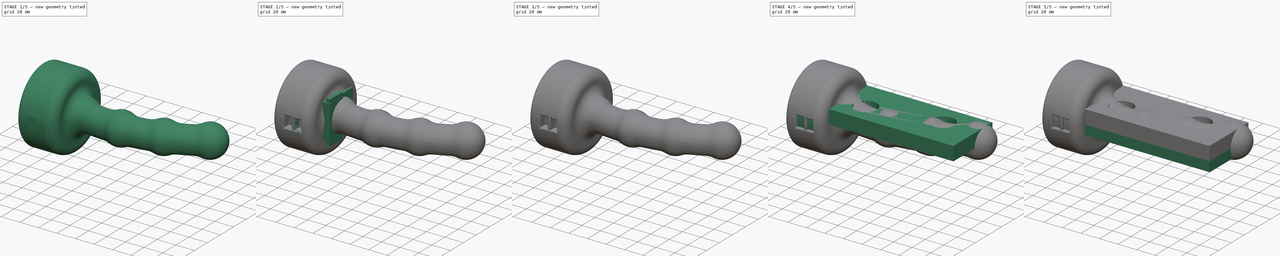
[diagram: build sequence overview — one tinted view per stage of 5, left to right]
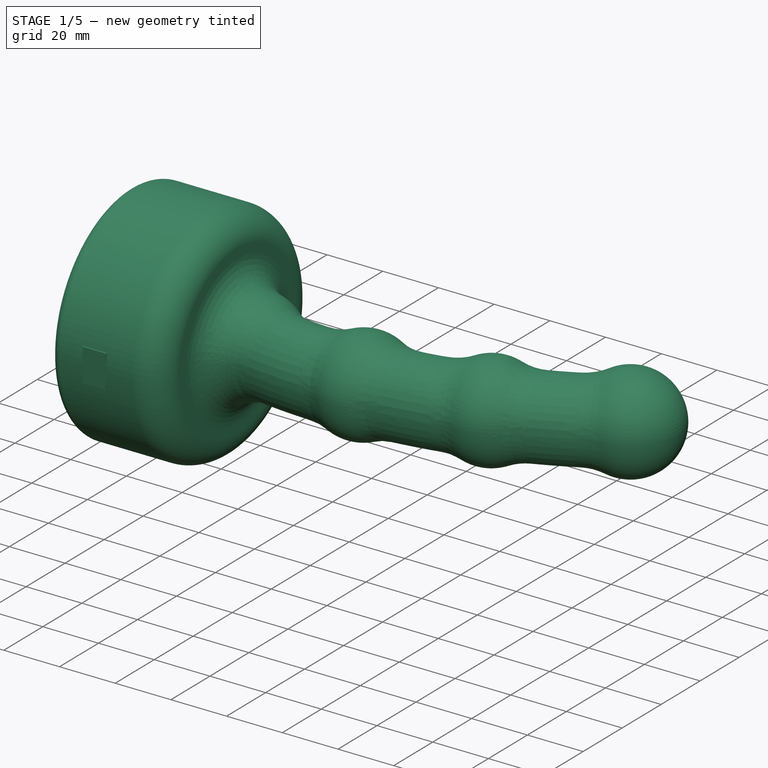
[diagram: stage 1 of 5 — iso view after this stage's code; geometry added in this stage tinted green]
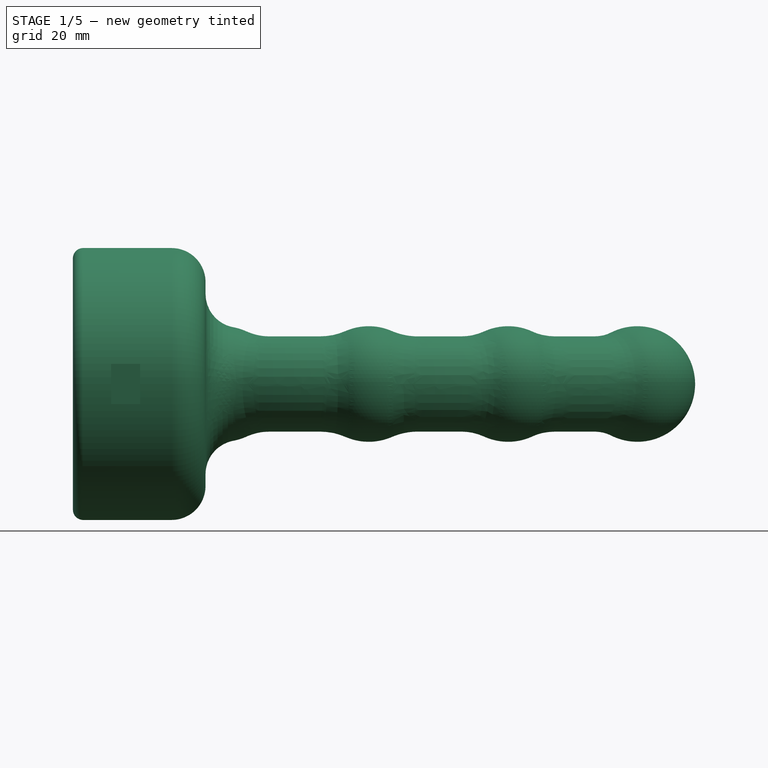
[diagram: stage 1 of 5 — front view after this stage's code; geometry added in this stage tinted green]
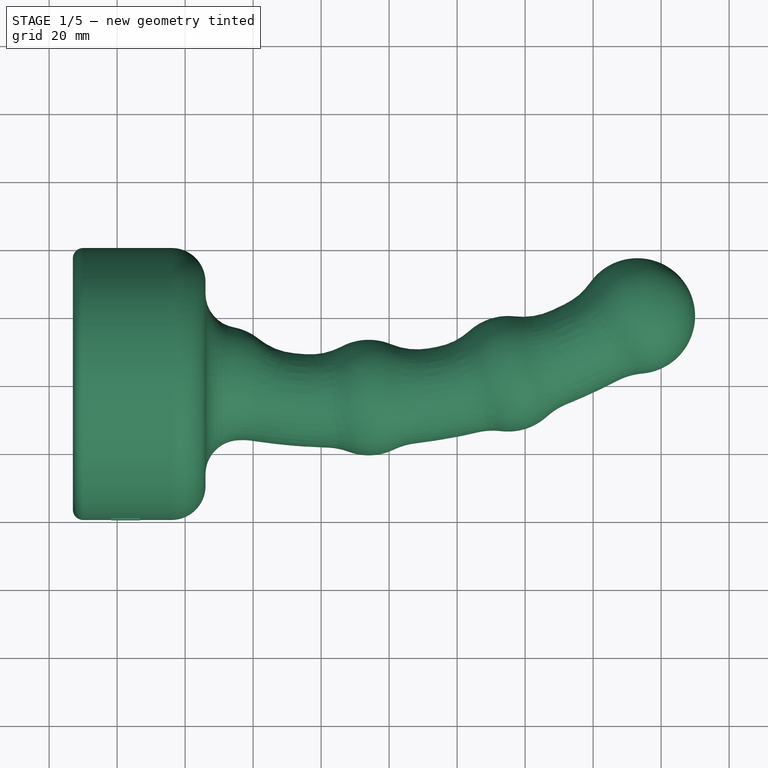
[diagram: stage 1 of 5 — top view after this stage's code; geometry added in this stage tinted green]
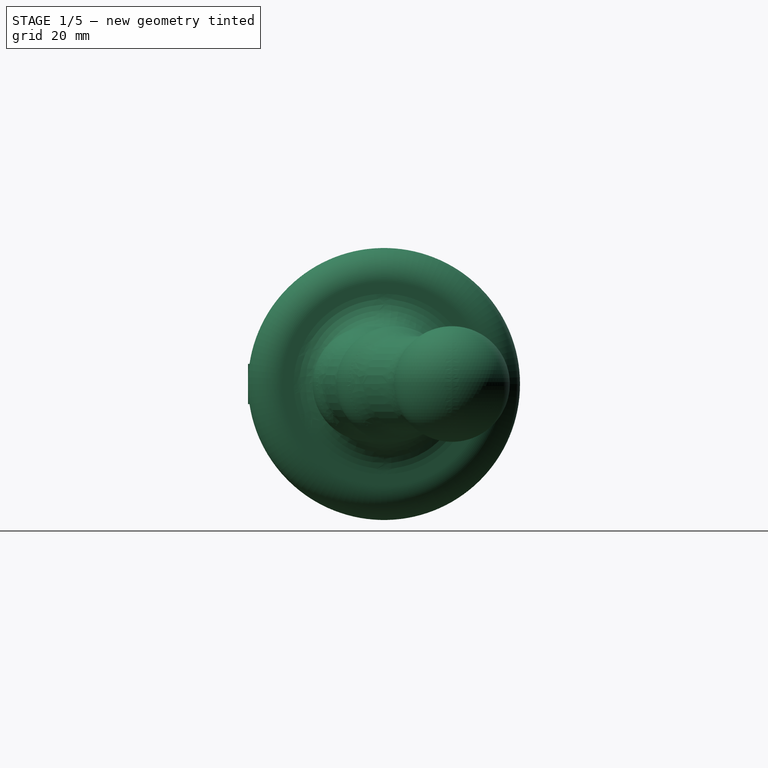
[diagram: stage 1 of 5 — right view after this stage's code; geometry added in this stage tinted green]
FCSTD DOCUMENT  (FreeCAD 0.14R3691 (Git))
Label: FullModelAttempt-1
License: CC-BY 3.0
LicenseURL: http://creativecommons.org/licenses/by/3.0/
objects: Sketcher::SketchObject×60, Part::Extrusion×39, Part::Cut×20, Part::MultiFuse×20, Part::Fillet×10, Part::Sweep×10, Part::Sphere×7, Part::Box×4, Part::Chamfer×2, Part::Loft×2
note: 174 computed .brp shape members not serialized (recipe doc carries the construction recipe); baked Part::Feature solids carry a one-line shape summary decoded from their .brp

FEATURE [Sketcher::SketchObject] Sketch061  label="Outer Base - 40 mm"
  Placement = pos=(0,0,0) rot=(0.57735,-0.57735,-0.57735;2.0944rad)
  sketch-geometry (1):
    g0: Circle CenterX=0 CenterY=0 CenterZ=0 NormalX=0 NormalY=0 NormalZ=1 Radius=40
  constraints (2):
    c: Coincident(g0,g-1)
    c: Radius(g0) = 40
FEATURE [Sketcher::SketchObject] Sketch062  label="Outer Shaft - 14mm"
  Placement = pos=(0,0,0) rot=(0.57735,-0.57735,-0.57735;2.0944rad)
  sketch-geometry (1):
    g0: Circle CenterX=0 CenterY=0 CenterZ=0 NormalX=0 NormalY=0 NormalZ=1 Radius=14
  constraints (2):
    c: Coincident(g0,g-1)
    c: Radius(g0) = 14
FEATURE [Part::Sweep] Sweep013  label="Outer Shaft"
  Frenet = false
  Sections = -> [Sketch062]
  Solid = true
  Spine = -> Sketch [Edge1]
  Transition = 1
FEATURE [Part::Sphere] Sphere003  label="Tip Sphere"
  Angle1 = -90
  Angle2 = 90
  Angle3 = 360
  Placement = pos=(127,20,0) rot=(0,0,1;0rad)
  Radius = 17
FEATURE [Part::Sphere] Sphere004  label="Sphere003"
  Angle1 = -90
  Angle2 = 90
  Angle3 = 360
  Placement = pos=(89,3,0) rot=(0,0,1;0rad)
  Radius = 17
FEATURE [Part::Sphere] Sphere005  label="Sphere004"
  Angle1 = -90
  Angle2 = 90
  Angle3 = 360
  Placement = pos=(48,-4,0) rot=(0,0,1;0rad)
  Radius = 17
FEATURE [Part::Sphere] Sphere006  label="Sphere005"
  Angle1 = -90
  Angle2 = 90
  Angle3 = 360
  Placement = pos=(5,0,0) rot=(0,0,1;0rad)
  Radius = 17
FEATURE [Part::MultiFuse] Fusion017  label="OuterShaftAndBumps"
  Shapes = -> [Sweep013,Sphere003,Sphere004,Sphere005,Sphere006]
FEATURE [Part::Extrusion] Extrude034
  Base = -> Sketch061
  Dir = (-39,0,0)
  Solid = true
FEATURE [Part::MultiFuse] Fusion018
  Shapes = -> [Extrude034,Fusion017]
FEATURE [Part::Fillet] Fillet008
  Base = -> Fusion018
  Edges = 9 edges r=20: [Edge5,Edge9,Edge13,Edge15,Edge19,Edge22,Edge24,Edge28,Edge31]
  Placement = pos=(6,0,0) rot=(0,0,1;0rad)
FEATURE [Part::Fillet] Fillet009
  Base = -> Fillet008
  Edges = 1 edges r=10: [Edge15]
FEATURE [Part::Fillet] Fillet010
  Base = -> Fillet009
  Edges = 1 edges r=10: [Edge2]
FEATURE [Part::Fillet] Fillet011  label="Base and Shaft"
  Base = -> Fillet010
  Edges = 1 edges r=3: [Edge30]
FEATURE [Part::Extrusion] Extrude036  label="ChargePort Cut"
  Base = -> Sketch064
  Dir = (0,14,0)
  Solid = true
FEATURE [Sketcher::SketchObject] Sketch065  label="HackerHolePlug002"
  Placement = pos=(0,-32,0) rot=(0,0.707107,0.707107;3.14159rad)
  sketch-geometry (4):
    g0: LineSegment StartX=2.5 StartY=5.925 StartZ=0 EndX=11 EndY=5.925 EndZ=0
    g1: LineSegment StartX=11 StartY=5.925 StartZ=0 EndX=11 EndY=-5.925 EndZ=0
    g2: LineSegment StartX=11 StartY=-5.925 StartZ=0 EndX=2.5 EndY=-5.925 EndZ=0
    g3: LineSegment StartX=2.5 StartY=-5.925 StartZ=0 EndX=2.5 EndY=5.925 EndZ=0
  constraints (12):
    c: Coincident(g0,g1)
    c: Coincident(g1,g2)
    c: Coincident(g2,g3)
    c: Coincident(g3,g0)
    c: Horizontal(g0)
    c: Horizontal(g2)
    c: Vertical(g1)
    c: Vertical(g3)
    c: Symmetric(g0,g2,g-1)
    c: DistanceY(g3) = 11.85
    c: DistanceX(g0) = 8.5
    c: DistanceX(g-2,g0) = 2.5
FEATURE [Sketcher::SketchObject] Sketch066  label="ChargeHolePlug002"
  Placement = pos=(0,-32,0) rot=(0,0.707107,0.707107;3.14159rad)
  sketch-geometry (4):
    g0: LineSegment StartX=13 StartY=6.175 StartZ=0 EndX=22 EndY=6.175 EndZ=0
    g1: LineSegment StartX=22 StartY=6.175 StartZ=0 EndX=22 EndY=-6.175 EndZ=0
    g2: LineSegment StartX=22 StartY=-6.175 StartZ=0 EndX=13 EndY=-6.175 EndZ=0
    g3: LineSegment StartX=13 StartY=-6.175 StartZ=0 EndX=13 EndY=6.175 EndZ=0
  constraints (12):
    c: Coincident(g0,g1)
    c: Coincident(g1,g2)
    c: Coincident(g2,g3)
    c: Coincident(g3,g0)
    c: Horizontal(g0)
    c: Horizontal(g2)
    c: Vertical(g1)
    c: Vertical(g3)
    c: Symmetric(g0,g2,g-1)
    c: DistanceY(g3) = 12.35
    c: DistanceX(g0) = 9
    c: DistanceX(g-2,g0) = 13
FEATURE [Sketcher::SketchObject] Sketch067  label="ChargeHolePlug003"
  Placement = pos=(0,-36,0) rot=(0,0.707107,0.707107;3.14159rad)
  sketch-geometry (4):
    g0: LineSegment StartX=13.5 StartY=5.675 StartZ=0 EndX=21.5 EndY=5.675 EndZ=0
    g1: LineSegment StartX=21.5 StartY=5.675 StartZ=0 EndX=21.5 EndY=-5.675 EndZ=0
    g2: LineSegment StartX=21.5 StartY=-5.675 StartZ=0 EndX=13.5 EndY=-5.675 EndZ=0
    g3: LineSegment StartX=13.5 StartY=-5.675 StartZ=0 EndX=13.5 EndY=5.675 EndZ=0
  constraints (12):
    c: Coincident(g0,g1)
    c: Coincident(g1,g2)
    c: Coincident(g2,g3)
    c: Coincident(g3,g0)
    c: Horizontal(g0)
    c: Horizontal(g2)
    c: Vertical(g1)
    c: Vertical(g3)
    c: Symmetric(g0,g2,g-1)
    c: DistanceY(g3) = 11.35
    c: DistanceX(g0) = 8
    c: DistanceX(g-2,g0) = 13.5
FEATURE [Sketcher::SketchObject] Sketch068  label="HackerHolePlug003"
  Placement = pos=(0,-36,0) rot=(0,0.707107,0.707107;3.14159rad)
  sketch-geometry (4):
    g0: LineSegment StartX=3 StartY=5.425 StartZ=0 EndX=10.5 EndY=5.425 EndZ=0
    g1: LineSegment StartX=10.5 StartY=5.425 StartZ=0 EndX=10.5 EndY=-5.425 EndZ=0
    g2: LineSegment StartX=10.5 StartY=-5.425 StartZ=0 EndX=3 EndY=-5.425 EndZ=0
    g3: LineSegment StartX=3 StartY=-5.425 StartZ=0 EndX=3 EndY=5.425 EndZ=0
  constraints (12):
    c: Coincident(g0,g1)
    c: Coincident(g1,g2)
    c: Coincident(g2,g3)
    c: Coincident(g3,g0)
    c: Horizontal(g0)
    c: Horizontal(g2)
    c: Vertical(g1)
    c: Vertical(g3)
    c: Symmetric(g0,g2,g-1)
    c: DistanceY(g3) = 10.85
    c: DistanceX(g0) = 7.5
    c: DistanceX(g-2,g0) = 3
FEATURE [Sketcher::SketchObject] Sketch069  label="ChargeHolePlug004"
  Placement = pos=(0,-40,0) rot=(0,0.707107,0.707107;3.14159rad)
  sketch-geometry (4):
    g0: LineSegment StartX=13.25 StartY=5.925 StartZ=0 EndX=21.75 EndY=5.925 EndZ=0
    g1: LineSegment StartX=21.75 StartY=5.925 StartZ=0 EndX=21.75 EndY=-5.925 EndZ=0
    g2: LineSegment StartX=21.75 StartY=-5.925 StartZ=0 EndX=13.25 EndY=-5.925 EndZ=0
    g3: LineSegment StartX=13.25 StartY=-5.925 StartZ=0 EndX=13.25 EndY=5.925 EndZ=0
  constraints (12):
    c: Coincident(g0,g1)
    c: Coincident(g1,g2)
    c: Coincident(g2,g3)
    c: Coincident(g3,g0)
    c: Horizontal(g0)
    c: Horizontal(g2)
    c: Vertical(g1)
    c: Vertical(g3)
    c: Symmetric(g0,g2,g-1)
    c: DistanceY(g3) = 11.85
    c: DistanceX(g0) = 8.5
    c: DistanceX(g-2,g0) = 13.25
FEATURE [Part::Extrusion] Extrude037
  Base = -> Sketch065
  Dir = (0,-4,0)
  Solid = true
FEATURE [Part::Extrusion] Extrude038
  Base = -> Sketch066
  Dir = (0,-4,0)
  Solid = true
FEATURE [Part::Extrusion] Extrude039
  Base = -> Sketch063
  Dir = (0,8,0)
  Solid = true
FEATURE [Part::Extrusion] Extrude040
  Base = -> Sketch069
  Dir = (0,8,0)
  Solid = true
FEATURE [Part::Loft] Loft
  Closed = false
  Ruled = true
  Sections = -> [Sketch051,Sketch066]
  Solid = true
FEATURE [Part::MultiFuse] Fusion022
  Shapes = -> [Extrude038,Loft]
FEATURE [Part::Cut] Cut022  label="ChargePlugBottom"
  Base = -> Fusion022
  Tool = -> Extrude040
FEATURE [Part::Loft] Loft001
  Closed = false
  Ruled = true
  Sections = -> [Sketch050,Sketch065]
  Solid = true
FEATURE [Part::Cut] Cut023
  Base = -> Extrude037
  Tool = -> Extrude039
FEATURE [Part::MultiFuse] Fusion023  label="HackerPlugBottom"
  Shapes = -> [Cut023,Loft001]
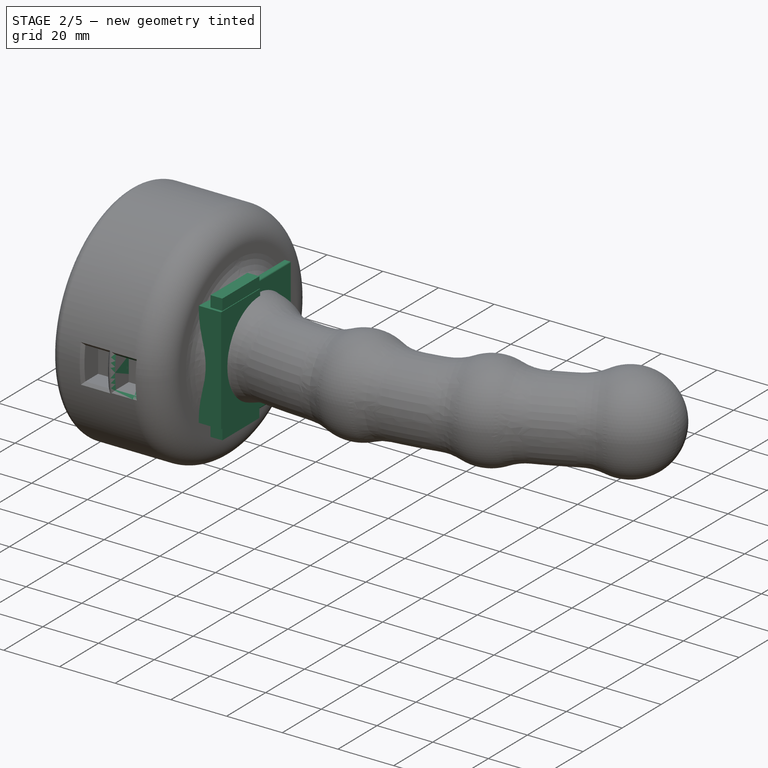
[diagram: stage 2 of 5 — iso view after this stage's code; geometry added in this stage tinted green]
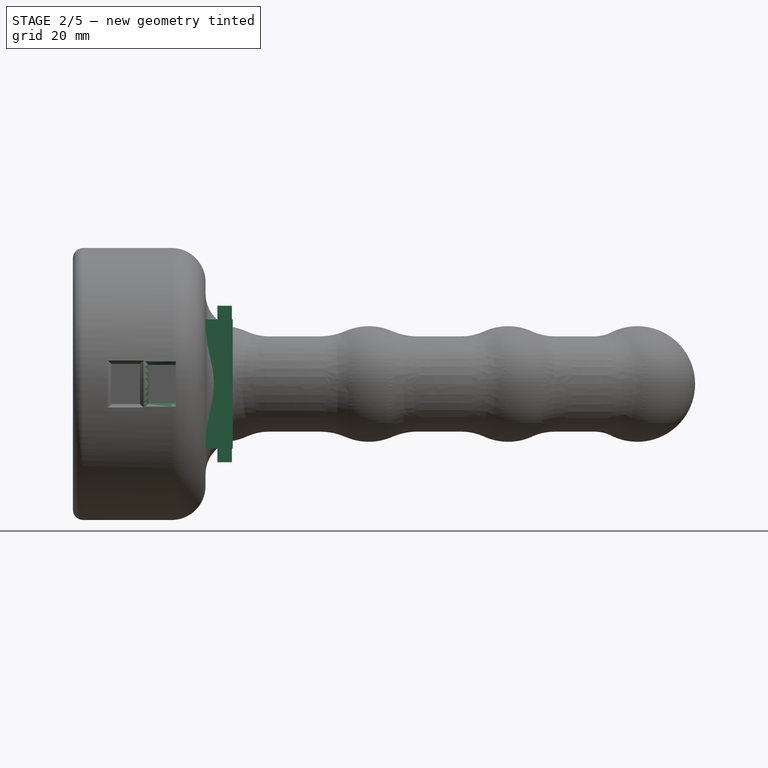
[diagram: stage 2 of 5 — front view after this stage's code; geometry added in this stage tinted green]
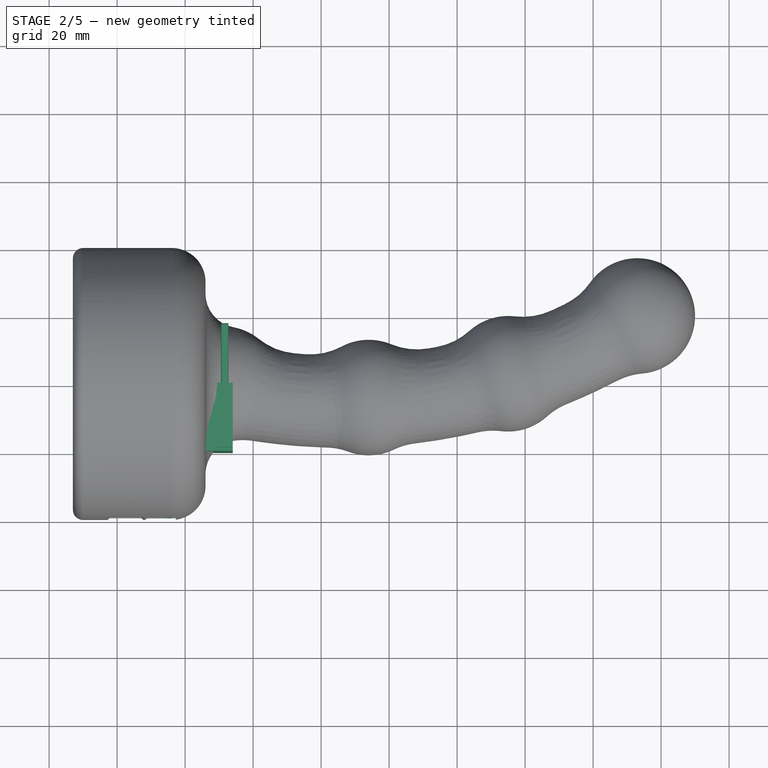
[diagram: stage 2 of 5 — top view after this stage's code; geometry added in this stage tinted green]
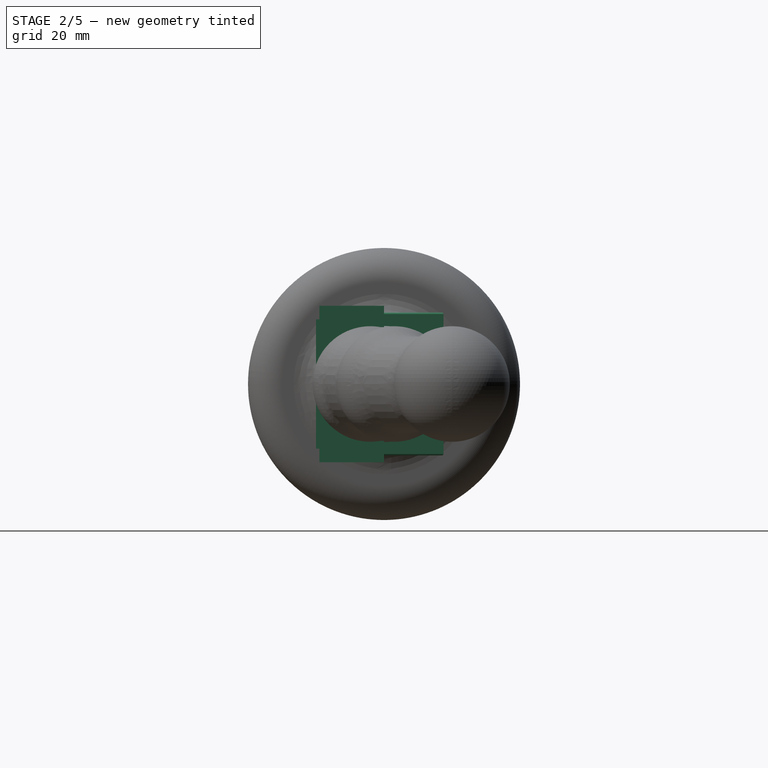
[diagram: stage 2 of 5 — right view after this stage's code; geometry added in this stage tinted green]
FEATURE [Part::Extrusion] Extrude004
  Base = -> Sketch010
  Dir = (4.25,0,0)
  Solid = true
FEATURE [Part::Extrusion] Extrude005
  Base = -> Sketch011
  Dir = (2.25,0,0)
  Solid = true
FEATURE [Part::Fillet] Fillet002
  Base = -> Extrude005
  Edges = 8 edges r=0.5: [Edge1,Edge2,Edge3,Edge4,Edge5,Edge8,Edge9,Edge10]
FEATURE [Part::Extrusion] Extrude006
  Base = -> Sketch007
  Dir = (9,0,0)
  Solid = true
FEATURE [Sketcher::SketchObject] Sketch012
  Placement = pos=(0,0,0) rot=(0.57735,-0.57735,-0.57735;2.0944rad)
  sketch-geometry (4):
    g0: LineSegment StartX=0 StartY=19 StartZ=0 EndX=20 EndY=19 EndZ=0
    g1: LineSegment StartX=20 StartY=19 StartZ=0 EndX=20 EndY=-19 EndZ=0
    g2: LineSegment StartX=20 StartY=-19 StartZ=0 EndX=0 EndY=-19 EndZ=0
    g3: LineSegment StartX=0 StartY=-19 StartZ=0 EndX=0 EndY=19 EndZ=0
  constraints (12):
    c: Coincident(g0,g1)
    c: Coincident(g1,g2)
    c: Coincident(g2,g3)
    c: Coincident(g3,g0)
    c: Horizontal(g0)
    c: Horizontal(g2)
    c: Vertical(g1)
    c: Vertical(g3)
    c: PointOnObject(g0,g-2)
    c: Symmetric(g0,g2,g-1)
    c: DistanceY(g1) = -38
    c: DistanceX(g0) = 20
FEATURE [Part::Extrusion] Extrude007
  Base = -> Sketch012
  Dir = (14,0,0)
  Solid = true
FEATURE [Part::MultiFuse] Fusion001
  Shapes = -> [Extrude006,Extrude007]
FEATURE [Sketcher::SketchObject] Sketch015  label="Outer Charge Wall"
  Placement = pos=(0,-26,0) rot=(0,0.707107,0.707107;3.14159rad)
  sketch-geometry (4):
    g0: LineSegment StartX=22.925 StartY=7.5 StartZ=0 EndX=12.175 EndY=7.5 EndZ=0
    g1: LineSegment StartX=12.175 StartY=7.5 StartZ=0 EndX=12.175 EndY=-7.5 EndZ=0
    g2: LineSegment StartX=12.175 StartY=-7.5 StartZ=0 EndX=22.925 EndY=-7.5 EndZ=0
    g3: LineSegment StartX=22.925 StartY=-7.5 StartZ=0 EndX=22.925 EndY=7.5 EndZ=0
  constraints (12):
    c: Coincident(g0,g1)
    c: Coincident(g1,g2)
    c: Coincident(g2,g3)
    c: Coincident(g3,g0)
    c: Horizontal(g0)
    c: Horizontal(g2)
    c: Vertical(g1)
    c: Vertical(g3)
    c: DistanceX(g-2,g0) = 12.175
    c: Symmetric(g0,g1,g-1)
    c: DistanceY(g3) = 15
    c: DistanceX(g0) = -10.75
FEATURE [Sketcher::SketchObject] Sketch016  label="Inner Charge Hole"
  Placement = pos=(0,-21,0) rot=(0,0.707107,0.707107;3.14159rad)
  sketch-geometry (4):
    g0: LineSegment StartX=14 StartY=4.5 StartZ=0 EndX=20.5 EndY=4.5 EndZ=0
    g1: LineSegment StartX=20.5 StartY=4.5 StartZ=0 EndX=20.5 EndY=-4.5 EndZ=0
    g2: LineSegment StartX=20.5 StartY=-4.5 StartZ=0 EndX=14 EndY=-4.5 EndZ=0
    g3: LineSegment StartX=14 StartY=-4.5 StartZ=0 EndX=14 EndY=4.5 EndZ=0
  constraints (12):
    c: Coincident(g0,g1)
    c: Coincident(g1,g2)
    c: Coincident(g2,g3)
    c: Coincident(g3,g0)
    c: Horizontal(g0)
    c: Horizontal(g2)
    c: Vertical(g1)
    c: Vertical(g3)
    c: Symmetric(g0,g2,g-1)
    c: DistanceY(g3) = 9
    c: DistanceX(g0) = 6.5
    c: DistanceX(g-2,g0) = 14
FEATURE [Sketcher::SketchObject] Sketch017  label="Inner Charge Wall"
  Placement = pos=(0,-26,0) rot=(0,0.707107,0.707107;3.14159rad)
  sketch-geometry (4):
    g0: LineSegment StartX=21.5 StartY=6 StartZ=0 EndX=16.5 EndY=6 EndZ=0
    g1: LineSegment StartX=16.5 StartY=6 StartZ=0 EndX=16.5 EndY=-6 EndZ=0
    g2: LineSegment StartX=16.5 StartY=-6 StartZ=0 EndX=21.5 EndY=-6 EndZ=0
    g3: LineSegment StartX=21.5 StartY=-6 StartZ=0 EndX=21.5 EndY=6 EndZ=0
  constraints (12):
    c: Coincident(g0,g1)
    c: Coincident(g1,g2)
    c: Coincident(g2,g3)
    c: Coincident(g3,g0)
    c: Horizontal(g0)
    c: Horizontal(g2)
    c: Vertical(g1)
    c: Vertical(g3)
    c: DistanceX(g-2,g0) = 16.5
    c: Symmetric(g0,g1,g-1)
    c: DistanceY(g3) = 12
    c: DistanceX(g0) = -5
FEATURE [Part::Extrusion] Extrude008
  Base = -> Sketch017
  Dir = (0,5,0)
  Solid = true
FEATURE [Part::Extrusion] Extrude009
  Base = -> Sketch016
  Dir = (0,-7,0)
  Solid = true
FEATURE [Sketcher::SketchObject] Sketch013  label="Outer Charge Hole"
  Placement = pos=(0,-31,0) rot=(0,0.707107,0.707107;3.14159rad)
  sketch-geometry (4):
    g0: LineSegment StartX=13.25 StartY=5.925 StartZ=0 EndX=21.75 EndY=5.925 EndZ=0
    g1: LineSegment StartX=21.75 StartY=5.925 StartZ=0 EndX=21.75 EndY=-5.925 EndZ=0
    g2: LineSegment StartX=21.75 StartY=-5.925 StartZ=0 EndX=13.25 EndY=-5.925 EndZ=0
    g3: LineSegment StartX=13.25 StartY=-5.925 StartZ=0 EndX=13.25 EndY=5.925 EndZ=0
  constraints (12):
    c: Coincident(g0,g1)
    c: Coincident(g1,g2)
    c: Coincident(g2,g3)
    c: Coincident(g3,g0)
    c: Horizontal(g0)
    c: Horizontal(g2)
    c: Vertical(g1)
    c: Vertical(g3)
    c: Symmetric(g0,g2,g-1)
    c: DistanceY(g3) = 11.85
    c: DistanceX(g0) = 8.5
    c: DistanceX(g-2,g0) = 13.25
FEATURE [Part::Extrusion] Extrude010
  Base = -> Sketch015
  Dir = (0,-5,0)
  Solid = true
FEATURE [Part::Extrusion] Extrude011
  Base = -> Sketch013
  Dir = (0,4,0)
  Solid = true
FEATURE [Part::MultiFuse] Fusion002  label="Charge Port Walls"
  Shapes = -> [Extrude008,Extrude010]
FEATURE [Part::MultiFuse] Fusion004  label="Charge Port Cuts"
  Shapes = -> [Extrude011,Extrude009]
FEATURE [Sketcher::SketchObject] Sketch019  label="HackPortAndResetMount"
  Placement = pos=(0,-26,0) rot=(1,0,0;1.5708rad)
  sketch-geometry (4):
    g0: LineSegment StartX=-14 StartY=11.5 StartZ=0 EndX=-10.45 EndY=11.5 EndZ=0
    g1: LineSegment StartX=-10.45 StartY=11.5 StartZ=0 EndX=-10.45 EndY=-11.5 EndZ=0
    g2: LineSegment StartX=-10.45 StartY=-11.5 StartZ=0 EndX=-14 EndY=-11.5 EndZ=0
    g3: LineSegment StartX=-14 StartY=-11.5 StartZ=0 EndX=-14 EndY=11.5 EndZ=0
  constraints (12):
    c: Coincident(g0,g1)
    c: Coincident(g1,g2)
    c: Coincident(g2,g3)
    c: Coincident(g3,g0)
    c: Horizontal(g0)
    c: Horizontal(g2)
    c: Vertical(g1)
    c: Vertical(g3)
    c: DistanceY(g3) = 23
    c: Symmetric(g0,g2,g-1)
    c: DistanceX(g-2,g0) = -14
    c: DistanceX(g0) = 3.55
FEATURE [Part::Extrusion] Extrude012  label="HackerBody"
  Base = -> Sketch019
  Dir = (0,5,0)
  Solid = true
FEATURE [Sketcher::SketchObject] Sketch025  label="HackerPortPegs"
  Placement = pos=(-10.6,0,0) rot=(0.57735,0.57735,0.57735;2.0944rad)
  sketch-geometry (2):
    g0: Circle CenterX=-23.5 CenterY=8 CenterZ=0 NormalX=0 NormalY=0 NormalZ=1 Radius=0.75
    g1: Circle CenterX=-23.5 CenterY=-8 CenterZ=0 NormalX=0 NormalY=0 NormalZ=1 Radius=0.75
  constraints (5):
    c: Radius(g0) = 0.75
    c: DistanceY(g-1,g0) = 8
    c: Equal(g1,g0)
    c: Symmetric(g1,g0,g-1)
    c: DistanceX(g-2,g0) = -23.5
FEATURE [Part::Extrusion] Extrude017  label="Hacker Port Pegs"
  Base = -> Sketch025
  Dir = (2.25,0,0)
  Solid = true
FEATURE [Sketcher::SketchObject] Sketch027  label="Hacker hole wall"
  Placement = pos=(0,-26,0) rot=(0,0.707107,0.707107;3.14159rad)
  sketch-geometry (4):
    g0: LineSegment StartX=12.25 StartY=7.5 StartZ=0 EndX=1 EndY=7.5 EndZ=0
    g1: LineSegment StartX=1 StartY=7.5 StartZ=0 EndX=1 EndY=-7.5 EndZ=0
    g2: LineSegment StartX=1 StartY=-7.5 StartZ=0 EndX=12.25 EndY=-7.5 EndZ=0
    g3: LineSegment StartX=12.25 StartY=-7.5 StartZ=0 EndX=12.25 EndY=7.5 EndZ=0
  constraints (12):
    c: Coincident(g0,g1)
    c: Coincident(g1,g2)
    c: Coincident(g2,g3)
    c: Coincident(g3,g0)
    c: Horizontal(g0)
    c: Horizontal(g2)
    c: Vertical(g1)
    c: Vertical(g3)
    c: DistanceX(g-2,g0) = 1
    c: Symmetric(g0,g1,g-1)
    c: DistanceY(g3) = 15
    c: DistanceX(g0) = -11.25
FEATURE [Sketcher::SketchObject] Sketch028  label="Hacker hole cut"
  Placement = pos=(0,-31,0) rot=(0,0.707107,0.707107;3.14159rad)
  sketch-geometry (4):
    g0: LineSegment StartX=2.5 StartY=5.925 StartZ=0 EndX=11 EndY=5.925 EndZ=0
    g1: LineSegment StartX=11 StartY=5.925 StartZ=0 EndX=11 EndY=-5.925 EndZ=0
    g2: LineSegment StartX=11 StartY=-5.925 StartZ=0 EndX=2.5 EndY=-5.925 EndZ=0
    g3: LineSegment StartX=2.5 StartY=-5.925 StartZ=0 EndX=2.5 EndY=5.925 EndZ=0
  constraints (12):
    c: Coincident(g0,g1)
    c: Coincident(g1,g2)
    c: Coincident(g2,g3)
    c: Coincident(g3,g0)
    c: Horizontal(g0)
    c: Horizontal(g2)
    c: Vertical(g1)
    c: Vertical(g3)
    c: Symmetric(g0,g2,g-1)
    c: DistanceY(g3) = 11.85
    c: DistanceX(g0) = 8.5
    c: DistanceX(g-2,g0) = 2.5
FEATURE [Part::Extrusion] Extrude019  label="Hacker hole wall001"
  Base = -> Sketch027
  Dir = (0,-5,0)
  Solid = true
FEATURE [Part::Extrusion] Extrude020  label="Hacker hole cut001"
  Base = -> Sketch028
  Dir = (0,5,0)
  Solid = true
FEATURE [Part::Cut] Cut005
  Base = -> Extrude019
  Tool = -> Extrude020
FEATURE [Part::MultiFuse] Fusion006  label="Hacker Port Assembly"
  Shapes = -> [Extrude012,Extrude017,Cut005]
FEATURE [Sketcher::SketchObject] Sketch029  label="ResetSupport"
  Placement = pos=(0,-28,0) rot=(1,0,0;1.5708rad)
  sketch-geometry (4):
    g0: LineSegment StartX=-14 StartY=11.25 StartZ=0 EndX=-10 EndY=11.25 EndZ=0
    g1: LineSegment StartX=-10 StartY=11.25 StartZ=0 EndX=-10 EndY=7.25 EndZ=0
    g2: LineSegment StartX=-10 StartY=7.25 StartZ=0 EndX=-14 EndY=7.25 EndZ=0
    g3: LineSegment StartX=-14 StartY=7.25 StartZ=0 EndX=-14 EndY=11.25 EndZ=0
  constraints (12):
    c: Coincident(g0,g1)
    c: Coincident(g1,g2)
    c: Coincident(g2,g3)
    c: Coincident(g3,g0)
    c: Horizontal(g0)
    c: Horizontal(g2)
    c: Vertical(g1)
    c: Vertical(g3)
    c: Equal(g0,g1)
    c: DistanceX(g0) = 4
    c: DistanceX(g-2,g0) = -10
    c: DistanceY(g-1,g1) = 7.25
FEATURE [Part::Extrusion] Extrude021  label="Reset Standoff"
  Base = -> Sketch029
  Dir = (0,2,0)
  Solid = true
FEATURE [Sketcher::SketchObject] Sketch063  label="HackerHolePlug001"
  Placement = pos=(0,-40,0) rot=(0,0.707107,0.707107;3.14159rad)
  sketch-geometry (4):
    g0: LineSegment StartX=2.75 StartY=5.675 StartZ=0 EndX=10.75 EndY=5.675 EndZ=0
    g1: LineSegment StartX=10.75 StartY=5.675 StartZ=0 EndX=10.75 EndY=-5.675 EndZ=0
    g2: LineSegment StartX=10.75 StartY=-5.675 StartZ=0 EndX=2.75 EndY=-5.675 EndZ=0
    g3: LineSegment StartX=2.75 StartY=-5.675 StartZ=0 EndX=2.75 EndY=5.675 EndZ=0
  constraints (12):
    c: Coincident(g0,g1)
    c: Coincident(g1,g2)
    c: Coincident(g2,g3)
    c: Coincident(g3,g0)
    c: Horizontal(g0)
    c: Horizontal(g2)
    c: Vertical(g1)
    c: Vertical(g3)
    c: Symmetric(g0,g2,g-1)
    c: DistanceY(g3) = 11.35
    c: DistanceX(g0) = 8
    c: DistanceX(g-2,g0) = 2.75
FEATURE [Sketcher::SketchObject] Sketch064  label="ChargeHolePlug001"
  Placement = pos=(0,-40,0) rot=(0,0.707107,0.707107;3.14159rad)
  sketch-geometry (4):
    g0: LineSegment StartX=13.25 StartY=5.925 StartZ=0 EndX=21.75 EndY=5.925 EndZ=0
    g1: LineSegment StartX=21.75 StartY=5.925 StartZ=0 EndX=21.75 EndY=-5.925 EndZ=0
    g2: LineSegment StartX=21.75 StartY=-5.925 StartZ=0 EndX=13.25 EndY=-5.925 EndZ=0
    g3: LineSegment StartX=13.25 StartY=-5.925 StartZ=0 EndX=13.25 EndY=5.925 EndZ=0
  constraints (12):
    c: Coincident(g0,g1)
    c: Coincident(g1,g2)
    c: Coincident(g2,g3)
    c: Coincident(g3,g0)
    c: Horizontal(g0)
    c: Horizontal(g2)
    c: Vertical(g1)
    c: Vertical(g3)
    c: Symmetric(g0,g2,g-1)
    c: DistanceY(g3) = 11.85
    c: DistanceX(g0) = 8.5
    c: DistanceX(g-2,g0) = 13.25
FEATURE [Part::Extrusion] Extrude035  label="Hacker Port Cut"
  Base = -> Sketch063
  Dir = (0,14,0)
  Solid = true
FEATURE [Part::Cut] Cut020
  Base = -> Fillet011
  Tool = -> Extrude036
FEATURE [Part::Cut] Cut021  label="Form with Ports"
  Base = -> Cut020
  Tool = -> Extrude035
FEATURE [Part::Chamfer] Chamfer001  label="Form"
  Base = -> Cut021
  Edges = 10 edges r=1: [Edge2,Edge3,Edge5,Edge6,Edge7,Edge10,Edge11,Edge12,Edge13,Edge14]
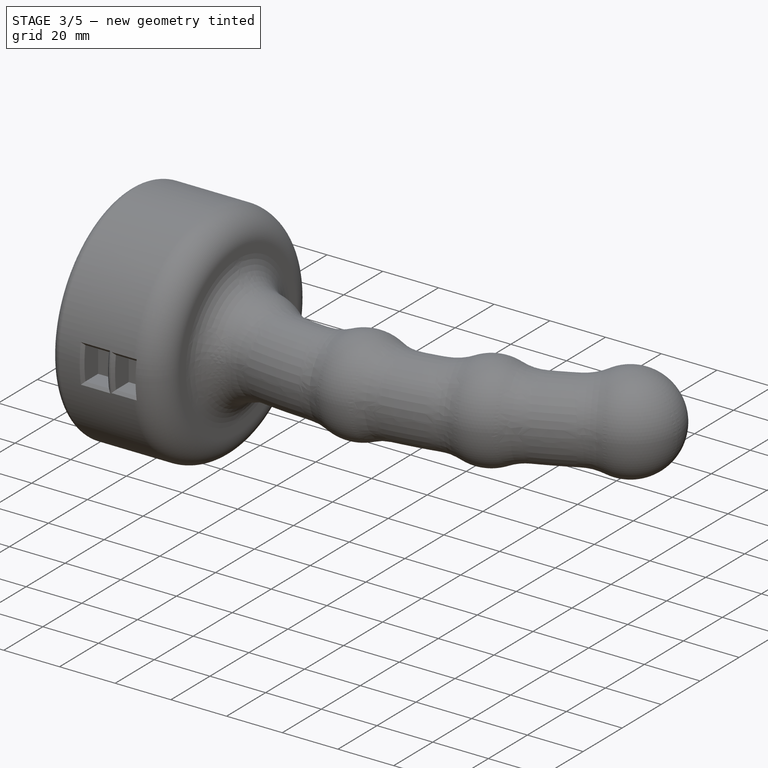
[diagram: stage 3 of 5 — iso view after this stage's code; geometry added in this stage tinted green]
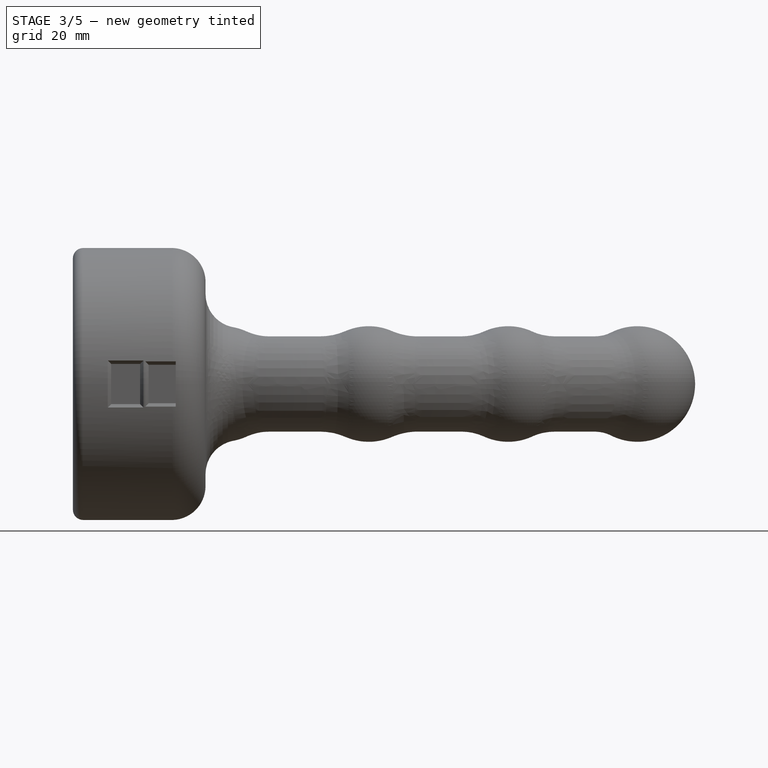
[diagram: stage 3 of 5 — front view after this stage's code; geometry added in this stage tinted green]
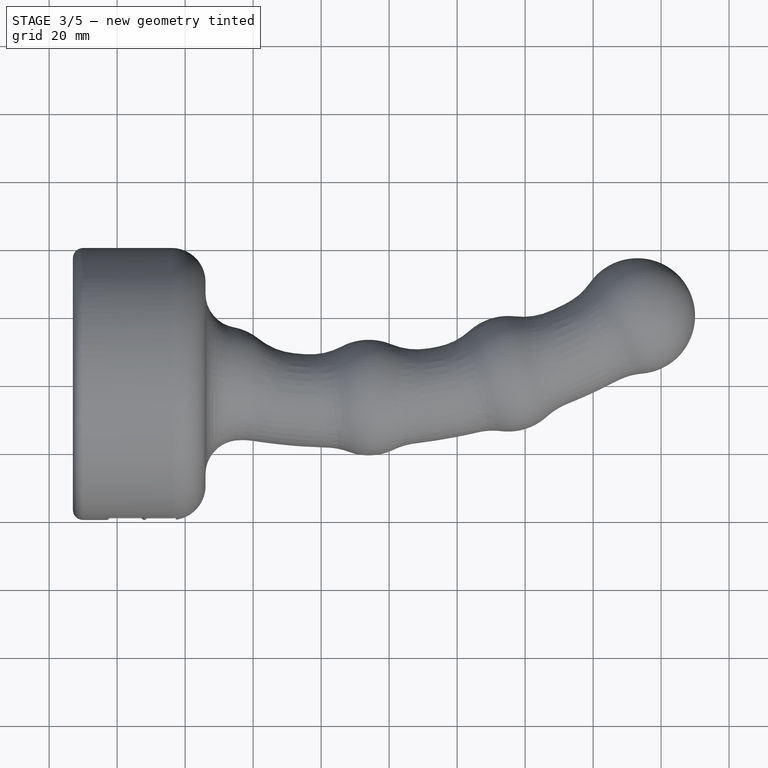
[diagram: stage 3 of 5 — top view after this stage's code; geometry added in this stage tinted green]
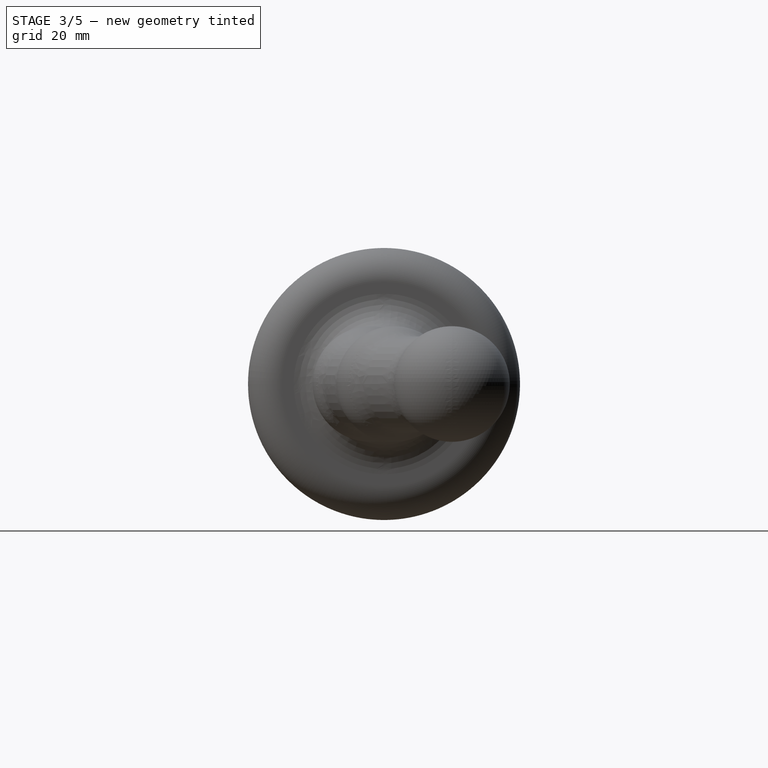
[diagram: stage 3 of 5 — right view after this stage's code; geometry added in this stage tinted green]
FEATURE [Sketcher::SketchObject] Sketch  label="Curve"
  sketch-geometry (1):
    g0: ArcOfCircle CenterX=40.5404 CenterY=155.794 CenterZ=0 NormalX=0 NormalY=0 NormalZ=1 Radius=160.982 StartAngle=4.45782 EndAngle=5.27936
  constraints (4):
    c: Coincident(g0,g-1)
    c: DistanceY(g-1,g0) = 20
    c: DistanceX(g-2,g0) = 127
    c: DistanceX(g0) = 40.5404
FEATURE [Sketcher::SketchObject] Sketch001  label="Base Diameter"
  Placement = pos=(0,0,0) rot=(0.57735,-0.57735,-0.57735;2.0944rad)
  sketch-geometry (1):
    g0: Circle CenterX=0 CenterY=0 CenterZ=0 NormalX=0 NormalY=0 NormalZ=1 Radius=38
  constraints (2):
    c: Coincident(g0,g-1)
    c: Radius(g0) = 38
FEATURE [Sketcher::SketchObject] Sketch002  label="3.5 Inch Circumference"
  Placement = pos=(0,0,0) rot=(0.57735,-0.57735,-0.57735;2.0944rad)
  sketch-geometry (1):
    g0: Circle CenterX=0 CenterY=0 CenterZ=0 NormalX=0 NormalY=0 NormalZ=1 Radius=14
  constraints (2):
    c: Coincident(g0,g-1)
    c: Radius(g0) = 14
FEATURE [Sketcher::SketchObject] Sketch003  label="4 inch circumference"
  Placement = pos=(0,0,0) rot=(-0.57735,0.57735,0.57735;4.18879rad)
  sketch-geometry (1):
    g0: Circle CenterX=0 CenterY=0 CenterZ=0 NormalX=0 NormalY=0 NormalZ=1 Radius=16.25
  constraints (2):
    c: Coincident(g0,g-1)
    c: Radius(g0) = 16.25
FEATURE [Sketcher::SketchObject] Sketch004  label="Short Curve"
  sketch-geometry (1):
    g0: ArcOfCircle CenterX=40.5404 CenterY=155.52 CenterZ=0 NormalX=0 NormalY=0 NormalZ=1 Radius=160.751 StartAngle=4.54022 EndAngle=5.28027
  constraints (5):
    c: DistanceX(g0) = 40.5404
    c: DistanceY(g-1,g0) = 20
    c: DistanceY(g-1,g0) = 155.52
    c: DistanceX(g-2,g0) = 127
    c: DistanceX(g-2,g0) = 13
FEATURE [Sketcher::SketchObject] Sketch005  label=" LilyPadHolder Outer 27mm"
  Placement = pos=(0,0,0) rot=(0.57735,-0.57735,-0.57735;2.0944rad)
  sketch-geometry (2):
    g0: ArcOfCircle CenterX=0 CenterY=0 CenterZ=0 NormalX=0 NormalY=0 NormalZ=1 Radius=27 StartAngle=3.14159 EndAngle=6.28319
    g1: LineSegment StartX=-27 StartY=0 StartZ=0 EndX=27 EndY=0 EndZ=0
  constraints (6):
    c: Radius(g0) = 27
    c: Coincident(g0,g-1)
    c: Horizontal(g1)
    c: Coincident(g0,g1)
    c: Coincident(g0,g1)
    c: PointOnObject(g0,g-1)
FEATURE [Sketcher::SketchObject] Sketch006  label="LilyPadHolder Big Cut"
  Placement = pos=(-1.5,0,0) rot=(-0.57735,0.57735,0.57735;4.18879rad)
  sketch-geometry (1):
    g0: Circle CenterX=0 CenterY=0 CenterZ=0 NormalX=0 NormalY=0 NormalZ=1 Radius=25.25
  constraints (2):
    c: Coincident(g0,g-1)
    c: Radius(g0) = 25.25
FEATURE [Sketcher::SketchObject] Sketch007  label="LilyPad Inner Cut"
  Placement = pos=(-9,0,0) rot=(-0.57735,0.57735,0.57735;4.18879rad)
  sketch-geometry (1):
    g0: Circle CenterX=0 CenterY=0 CenterZ=0 NormalX=0 NormalY=0 NormalZ=1 Radius=24
  constraints (2):
    c: Coincident(g0,g-1)
    c: Radius(g0) = 24
FEATURE [Sketcher::SketchObject] Sketch008  label="Battery Outer - 54mm"
  Placement = pos=(0,0,0) rot=(0.57735,-0.57735,-0.57735;2.0944rad)
  sketch-geometry (4):
    g0: LineSegment StartX=0 StartY=27 StartZ=0 EndX=19 EndY=27 EndZ=0
    g1: LineSegment StartX=19 StartY=27 StartZ=0 EndX=19 EndY=-27 EndZ=0
    g2: LineSegment StartX=19 StartY=-27 StartZ=0 EndX=0 EndY=-27 EndZ=0
    g3: LineSegment StartX=0 StartY=27 StartZ=0 EndX=0 EndY=-27 EndZ=0
  constraints (12):
    c: Coincident(g0,g1)
    c: Coincident(g1,g2)
    c: Horizontal(g0)
    c: Horizontal(g2)
    c: Vertical(g1)
    c: DistanceY(g1) = -54
    c: Symmetric(g0,g1,g-1)
    c: Vertical(g3)
    c: Coincident(g0,g3)
    c: Coincident(g2,g3)
    c: PointOnObject(g2,g-2)
    c: DistanceX(g2) = -19
FEATURE [Sketcher::SketchObject] Sketch009  label="BatteryCut"
  Placement = pos=(2,0,0) rot=(-0.57735,0.57735,0.57735;4.18879rad)
  sketch-geometry (4):
    g0: LineSegment StartX=-17 StartY=25.5 StartZ=0 EndX=17 EndY=25.5 EndZ=0
    g1: LineSegment StartX=17 StartY=25.5 StartZ=0 EndX=17 EndY=-25.5 EndZ=0
    g2: LineSegment StartX=17 StartY=-25.5 StartZ=0 EndX=-17 EndY=-25.5 EndZ=0
    g3: LineSegment StartX=-17 StartY=-25.5 StartZ=0 EndX=-17 EndY=25.5 EndZ=0
  constraints (12):
    c: Coincident(g0,g1)
    c: Coincident(g1,g2)
    c: Coincident(g2,g3)
    c: Coincident(g3,g0)
    c: Horizontal(g0)
    c: Horizontal(g2)
    c: Vertical(g1)
    c: Vertical(g3)
    c: Symmetric(g1,g0,g-1)
    c: Symmetric(g0,g0,g-2)
    c: DistanceX(g0) = 34
    c: DistanceY(g3) = 51
FEATURE [Sketcher::SketchObject] Sketch010  label="MotorBoard Outer"
  Placement = pos=(9.5,0,0) rot=(-0.57735,0.57735,0.57735;4.18879rad)
  sketch-geometry (4):
    g0: LineSegment StartX=0 StartY=23 StartZ=0 EndX=19 EndY=23 EndZ=0
    g1: LineSegment StartX=19 StartY=23 StartZ=0 EndX=19 EndY=-23 EndZ=0
    g2: LineSegment StartX=19 StartY=-23 StartZ=0 EndX=0 EndY=-23 EndZ=0
    g3: LineSegment StartX=0 StartY=23 StartZ=0 EndX=0 EndY=-23 EndZ=0
  constraints (12):
    c: Coincident(g0,g1)
    c: Coincident(g1,g2)
    c: Horizontal(g0)
    c: Horizontal(g2)
    c: Vertical(g1)
    c: Symmetric(g0,g1,g-1)
    c: DistanceY(g1) = -46
    c: Vertical(g3)
    c: Coincident(g0,g3)
    c: Coincident(g2,g3)
    c: PointOnObject(g0,g-2)
    c: DistanceX(g0) = 19
FEATURE [Sketcher::SketchObject] Sketch011  label="MotorBoard Cut"
  Placement = pos=(10.5,0,0) rot=(-0.57735,0.57735,0.57735;4.18879rad)
  sketch-geometry (4):
    g0: LineSegment StartX=-17.5 StartY=21 StartZ=0 EndX=17.5 EndY=21 EndZ=0
    g1: LineSegment StartX=17.5 StartY=21 StartZ=0 EndX=17.5 EndY=-21 EndZ=0
    g2: LineSegment StartX=17.5 StartY=-21 StartZ=0 EndX=-17.5 EndY=-21 EndZ=0
    g3: LineSegment StartX=-17.5 StartY=-21 StartZ=0 EndX=-17.5 EndY=21 EndZ=0
  constraints (12):
    c: Coincident(g0,g1)
    c: Coincident(g1,g2)
    c: Coincident(g2,g3)
    c: Coincident(g3,g0)
    c: Horizontal(g0)
    c: Horizontal(g2)
    c: Vertical(g1)
    c: Vertical(g3)
    c: Symmetric(g0,g2,g-1)
    c: DistanceX(g0) = 35
    c: DistanceY(g1) = -42
    c: Symmetric(g1,g2,g-2)
FEATURE [Part::Extrusion] Extrude
  Base = -> Sketch005
  Dir = (-8.93,0,0)
  Solid = true
FEATURE [Part::Extrusion] Extrude001
  Base = -> Sketch006
  Dir = (-1,0,0)
  Solid = true
FEATURE [Part::Fillet] Fillet
  Base = -> Extrude001
  Edges = 2 edges r=0.25: [Edge2,Edge3]
FEATURE [Part::Cut] Cut  label="LilyPadCut"
  Base = -> Extrude
  Placement = pos=(0,0,0) rot=(-1,0,0;1.5708rad)
  Tool = -> Fillet
FEATURE [Part::Extrusion] Extrude002
  Base = -> Sketch008
  Dir = (9.75,0,0)
  Solid = true
FEATURE [Part::Extrusion] Extrude003
  Base = -> Sketch009
  Dir = (6.25,0,0)
  Solid = true
FEATURE [Part::Fillet] Fillet001
  Base = -> Extrude003
  Edges = 8 edges r=1: [Edge1,Edge2,Edge3,Edge4,Edge5,Edge8,Edge9,Edge10]
FEATURE [Part::Cut] Cut001  label="Battery"
  Base = -> Extrude002
  Tool = -> Fillet001
FEATURE [Part::Cut] Cut002  label="MotorBoard"
  Base = -> Extrude004
  Tool = -> Fillet002
FEATURE [Part::MultiFuse] Fusion
  Shapes = -> [Cut,Cut002,Cut001]
FEATURE [Part::Cut] Cut003  label="PartMount"
  Base = -> Fusion
  Placement = pos=(-14,0,0) rot=(0,0,1;0rad)
  Tool = -> Fusion001
FEATURE [Part::MultiFuse] Fusion003  label="Main Body And Charge Port Walls"
  Shapes = -> [Cut003,Fusion002]
FEATURE [Sketcher::SketchObject] Sketch018  label="PowerButton Mount"
  Placement = pos=(-20,0,0) rot=(-0.57735,0.57735,0.57735;4.18879rad)
  sketch-geometry (8):
    g0: LineSegment [constr] StartX=-10 StartY=32 StartZ=0 EndX=2 EndY=32 EndZ=0
    g1: LineSegment [constr] StartX=2 StartY=32 StartZ=0 EndX=2 EndY=19 EndZ=0
    g2: LineSegment [constr] StartX=2 StartY=19 StartZ=0 EndX=-10 EndY=19 EndZ=0
    g3: LineSegment [constr] StartX=-10 StartY=19 StartZ=0 EndX=-10 EndY=32 EndZ=0
    g4: LineSegment StartX=-8 StartY=30.5 StartZ=0 EndX=2 EndY=30.5 EndZ=0
    g5: LineSegment StartX=2 StartY=30.5 StartZ=0 EndX=2 EndY=20.5 EndZ=0
    g6: LineSegment StartX=2 StartY=20.5 StartZ=0 EndX=-8 EndY=20.5 EndZ=0
    g7: LineSegment StartX=-8 StartY=20.5 StartZ=0 EndX=-8 EndY=30.5 EndZ=0
  constraints (24):
    c: Coincident(g0,g1)
    c: Coincident(g1,g2)
    c: Coincident(g2,g3)
    c: Coincident(g3,g0)
    c: Horizontal(g0)
    c: Horizontal(g2)
    c: Vertical(g1)
    c: Vertical(g3)
    c: DistanceY(g1) = -13
    c: DistanceX(g0) = 12
    c: DistanceX(g-2,g1) = 2
    c: DistanceY(g-1,g1) = 19
    c: Coincident(g4,g5)
    c: Coincident(g5,g6)
    c: Coincident(g6,g7)
    c: Coincident(g7,g4)
    c: Horizontal(g4)
    c: Horizontal(g6)
    c: Vertical(g5)
    c: Vertical(g7)
    c: Equal(g6,g5)
    c: DistanceY(g5) = -10
    c: PointOnObject(g4,g1)
    c: Distance(g4,g0) = 1.5
FEATURE [Part::Extrusion] Extrude013  label="Pwr Button Mount"
  Base = -> Sketch018
  Dir = (-2.93,0,0)
  Solid = true
FEATURE [Sketcher::SketchObject] Sketch020
  Placement = pos=(-20,0,0) rot=(-0.57735,0.57735,0.57735;4.18879rad)
  sketch-geometry (4):
    g0: LineSegment StartX=-8 StartY=-20.5 StartZ=0 EndX=2 EndY=-20.5 EndZ=0
    g1: LineSegment StartX=2 StartY=-20.5 StartZ=0 EndX=2 EndY=-30.5 EndZ=0
    g2: LineSegment StartX=2 StartY=-30.5 StartZ=0 EndX=-8 EndY=-30.5 EndZ=0
    g3: LineSegment StartX=-8 StartY=-30.5 StartZ=0 EndX=-8 EndY=-20.5 EndZ=0
  constraints (12):
    c: Coincident(g0,g1)
    c: Coincident(g1,g2)
    c: Coincident(g2,g3)
    c: Coincident(g3,g0)
    c: Horizontal(g0)
    c: Horizontal(g2)
    c: Vertical(g1)
    c: Vertical(g3)
    c: Equal(g2,g1)
    c: DistanceX(g2) = -10
    c: DistanceX(g-2,g0) = 2
    c: DistanceY(g-1,g0) = -20.5
FEATURE [Part::Extrusion] Extrude014  label="Momentary Mount"
  Base = -> Sketch020
  Dir = (-2.93,0,0)
  Solid = true
FEATURE [Part::Cut] Cut004  label="Body And Charge Port"
  Base = -> Fusion003
  Tool = -> Fusion004
FEATURE [Part::MultiFuse] Fusion007  label="Part Holder"
  Shapes = -> [Fusion006,Extrude021,Extrude014,Extrude013,Cut004]
FEATURE [Part::Extrusion] Extrude032  label="Charge Hole Plug"
  Base = -> Sketch051
  Dir = (0,6,0)
  Solid = true
FEATURE [Part::Box] Box  label="Batt Support 1"
  Height = 1
  Length = 6.25
  Placement = pos=(-12,-1,19) rot=(0,0,1;0rad)
  Width = 1
FEATURE [Part::Box] Box001  label="Batt Support 002"
  Height = 1
  Length = 6.25
  Placement = pos=(-12,-1,-20) rot=(0,0,1;0rad)
  Width = 1
FEATURE [Part::Box] Box002  label="Motor Support 1"
  Height = 1
  Length = 2.25
  Placement = pos=(-3.5,-1,-20) rot=(0,0,1;0rad)
  Width = 1
FEATURE [Part::Box] Box003  label="Motor Support 002"
  Height = 1
  Length = 2.25
  Placement = pos=(-3.5,-1,19) rot=(0,0,1;0rad)
  Width = 1
FEATURE [Part::Chamfer] Chamfer  label="Part Holder001"
  Base = -> Fusion007
  Edges = 4 edges r=3: [Edge55,Edge56,Edge85,Edge86]
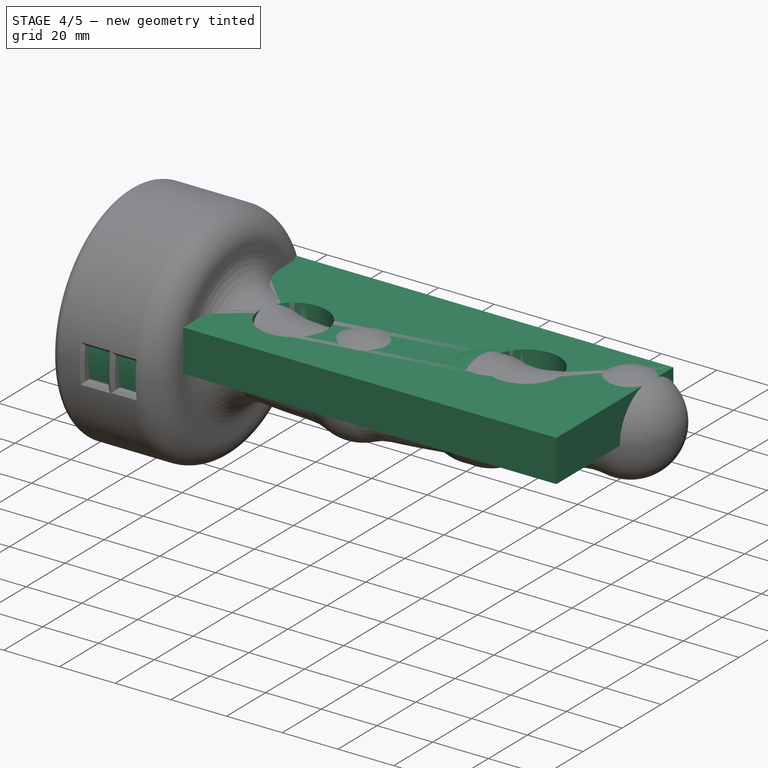
[diagram: stage 4 of 5 — iso view after this stage's code; geometry added in this stage tinted green]
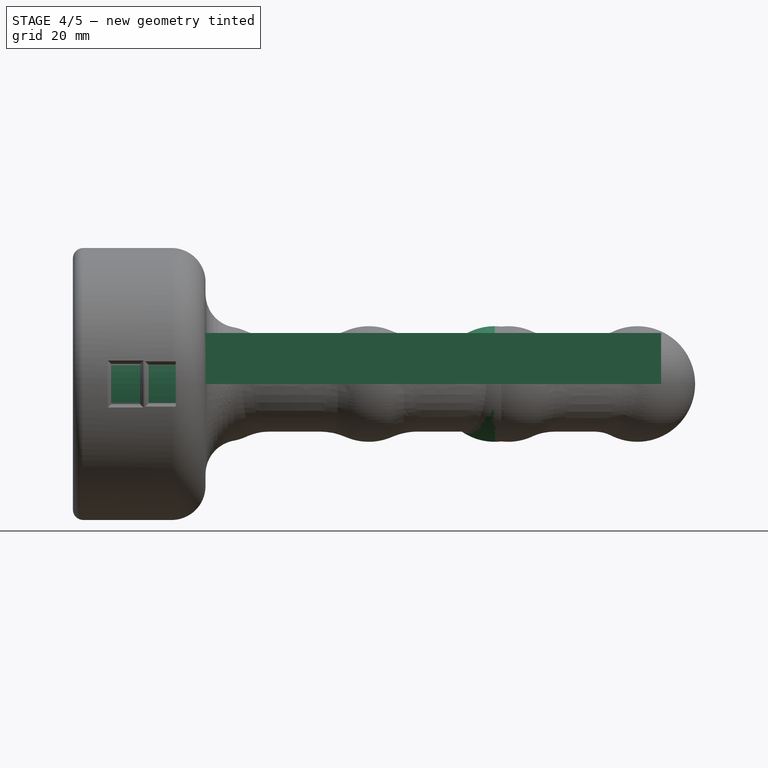
[diagram: stage 4 of 5 — front view after this stage's code; geometry added in this stage tinted green]
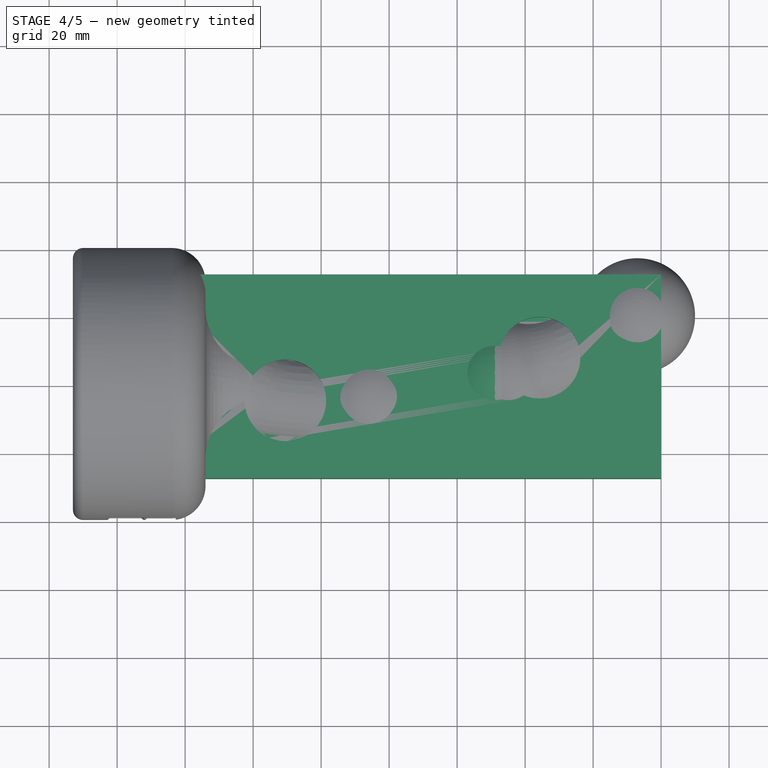
[diagram: stage 4 of 5 — top view after this stage's code; geometry added in this stage tinted green]
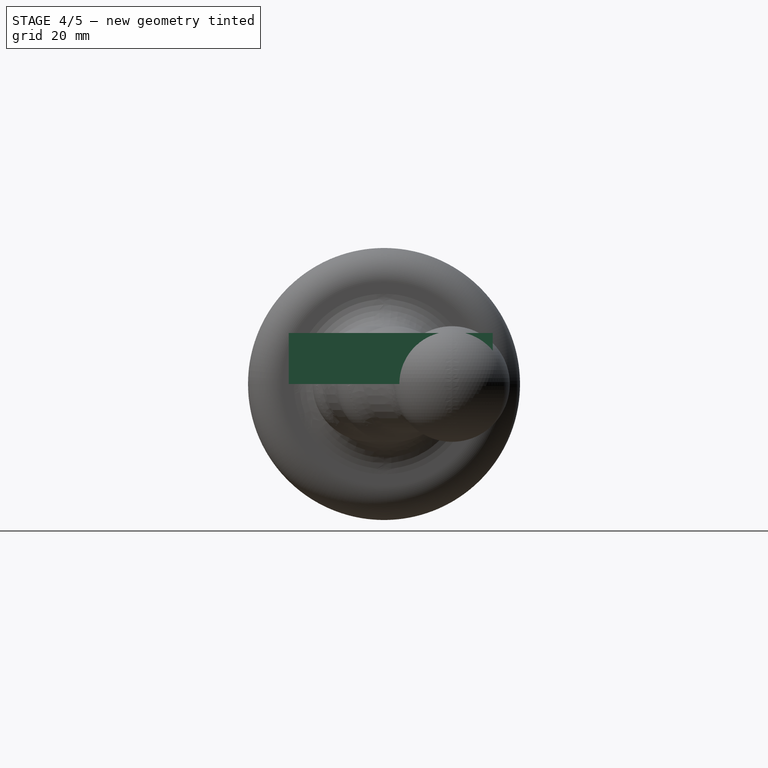
[diagram: stage 4 of 5 — right view after this stage's code; geometry added in this stage tinted green]
FEATURE [Sketcher::SketchObject] Sketch022  label="Base Size Test002"
  Placement = pos=(0,0,0) rot=(0.57735,-0.57735,-0.57735;2.0944rad)
  sketch-geometry (1):
    g0: Circle CenterX=0 CenterY=0 CenterZ=0 NormalX=0 NormalY=0 NormalZ=1 Radius=35
  constraints (2):
    c: Coincident(g0,g-1)
    c: Radius(g0) = 35
FEATURE [Sketcher::SketchObject] Sketch023  label=" 10mm radius - premold shaft"
  Placement = pos=(0,0,0) rot=(0.57735,-0.57735,-0.57735;2.0944rad)
  sketch-geometry (1):
    g0: Circle CenterX=0 CenterY=0 CenterZ=0 NormalX=0 NormalY=0 NormalZ=1 Radius=10
  constraints (2):
    c: Coincident(g0,g-1)
    c: Radius(g0) = 10
FEATURE [Part::Sweep] Sweep
  Frenet = false
  Sections = -> [Sketch023]
  Solid = true
  Spine = -> Sketch [Edge1]
  Transition = 1
FEATURE [Sketcher::SketchObject] Sketch040  label="Motor Tube Outer"
  Placement = pos=(0,0,0) rot=(0.57735,-0.57735,-0.57735;2.0944rad)
  sketch-geometry (1):
    g0: Circle CenterX=0 CenterY=0 CenterZ=0 NormalX=0 NormalY=0 NormalZ=1 Radius=7
  constraints (2):
    c: Coincident(g0,g-1)
    c: Radius(g0) = 7
FEATURE [Part::Sweep] Sweep009  label="Motor Tube Outer001"
  Frenet = false
  Sections = -> [Sketch040]
  Solid = true
  Spine = -> Sketch [Edge1]
  Transition = 1
FEATURE [Sketcher::SketchObject] Sketch041  label="Motor Tube outer cut"
  Placement = pos=(0,0,-15) rot=(0,0,1;0rad)
  sketch-geometry (13):
    g0: ArcOfCircle [constr] CenterX=40.5404 CenterY=155.794 CenterZ=0 NormalX=0 NormalY=0 NormalZ=1 Radius=160.982 StartAngle=4.45782 EndAngle=5.27936
    g1: LineSegment StartX=-8.26898 StartY=21.973 StartZ=0 EndX=10.1216 EndY=21.973 EndZ=0
    g2: LineSegment StartX=10.1216 StartY=21.973 StartZ=0 EndX=-0.555824 EndY=-25 EndZ=0
    g3: LineSegment StartX=-0.555824 StartY=-25 StartZ=0 EndX=-25.4018 EndY=-25 EndZ=0
    g4: LineSegment StartX=-25.4018 StartY=-25 StartZ=0 EndX=-8.26898 EndY=21.973 EndZ=0
    g5: GeomPoint [constr] X=-14.6211 Y=4.55743 Z=0
    g6: GeomPoint [constr] X=4.85783 Y=-1.18386 Z=0
    g7: LineSegment StartX=105.813 StartY=45.8853 StartZ=0 EndX=155.277 EndY=45.8853 EndZ=0
    g8: LineSegment StartX=155.277 StartY=45.8853 StartZ=0 EndX=207.474 EndY=-4.1147 EndZ=0
    g9: LineSegment StartX=207.474 StartY=-4.1147 StartZ=0 EndX=135.507 EndY=-4.1147 EndZ=0
    g10: LineSegment StartX=135.507 StartY=-4.1147 StartZ=0 EndX=105.813 EndY=45.8853 EndZ=0
    g11: GeomPoint [constr] X=156.791 Y=44.4345 Z=0
    g12: GeomPoint [constr] X=122.741 Y=17.3804 Z=0
  constraints (35):
    c: Coincident(g0,g-1)
    c: DistanceY(g-1,g0) = 20
    c: DistanceX(g-2,g0) = 127
    c: DistanceX(g0) = 40.5404
    c: Coincident(g1,g2)
    c: Coincident(g2,g3)
    c: Coincident(g3,g4)
    c: Coincident(g4,g1)
    c: Horizontal(g1)
    c: Horizontal(g3)
    c: Perpendicular(g4,g0)
    c: Perpendicular(g2,g0)
    c: PointOnObject(g5,g4)
    c: PointOnObject(g6,g2)
    c: PointOnObject(g6,g0)
    c: PointOnObject(g5,g0)
    c: Distance(g-1,g6) = 5
    c: Distance(g1) = 18.3906
    c: Coincident(g7,g8)
    c: Coincident(g8,g9)
    c: Coincident(g9,g10)
    c: Coincident(g10,g7)
    c: Horizontal(g7)
    c: Horizontal(g9)
    c: PointOnObject(g11,g8)
    c: PointOnObject(g11,g0)
    c: Distance(g4) = 50
    c: Perpendicular(g10,g0)
    c: Perpendicular(g8,g0)
    c: PointOnObject(g12,g10)
    c: PointOnObject(g12,g0)
    c: Distance(g12,g0) = 5
    c: DistanceY(g10) = 50
    c: DistanceY(g-1,g3) = -25
    c: Distance(g9,g12) = 25
FEATURE [Part::Extrusion] Extrude025
  Base = -> Sketch041
  Dir = (0,0,30)
  Solid = true
FEATURE [Part::Sweep] Sweep012
  Frenet = false
  Placement = pos=(0,-3,0) rot=(0,0,1;0rad)
  Sections = -> [Sketch042]
  Solid = true
  Spine = -> Sketch [Edge1]
  Transition = 1
FEATURE [Part::Cut] Cut011  label="MotorTube Outer002"
  Base = -> Sweep009
  Tool = -> Extrude025
FEATURE [Part::MultiFuse] Fusion011  label="Motor Tube Outer004"
  Shapes = -> [Cut011,Sweep012]
FEATURE [Sketcher::SketchObject] Sketch043  label="MotorMoldTop"
  Placement = pos=(-10,0,0) rot=(-0.57735,0.57735,0.57735;4.18879rad)
  sketch-geometry (4):
    g0: LineSegment StartX=-32 StartY=0 StartZ=0 EndX=28 EndY=0 EndZ=0
    g1: LineSegment StartX=28 StartY=0 StartZ=0 EndX=28 EndY=15 EndZ=0
    g2: LineSegment StartX=28 StartY=15 StartZ=0 EndX=-32 EndY=15 EndZ=0
    g3: LineSegment StartX=-32 StartY=15 StartZ=0 EndX=-32 EndY=0 EndZ=0
  constraints (12):
    c: Coincident(g0,g1)
    c: Coincident(g1,g2)
    c: Coincident(g2,g3)
    c: Coincident(g3,g0)
    c: Horizontal(g0)
    c: Horizontal(g2)
    c: Vertical(g1)
    c: Vertical(g3)
    c: PointOnObject(g0,g-1)
    c: DistanceX(g0) = 60
    c: DistanceX(g-2,g0) = 28
    c: DistanceY(g1) = 15
FEATURE [Sketcher::SketchObject] Sketch044  label="MotorMoldBottom"
  Placement = pos=(-10,0,0) rot=(0.57735,-0.57735,-0.57735;2.0944rad)
  sketch-geometry (4):
    g0: LineSegment StartX=-32 StartY=0 StartZ=0 EndX=28 EndY=0 EndZ=0
    g1: LineSegment StartX=28 StartY=0 StartZ=0 EndX=28 EndY=-10.5 EndZ=0
    g2: LineSegment StartX=28 StartY=-10.5 StartZ=0 EndX=-32 EndY=-10.5 EndZ=0
    g3: LineSegment StartX=-32 StartY=-10.5 StartZ=0 EndX=-32 EndY=0 EndZ=0
  constraints (12):
    c: Coincident(g0,g1)
    c: Coincident(g1,g2)
    c: Coincident(g2,g3)
    c: Coincident(g3,g0)
    c: Horizontal(g0)
    c: Horizontal(g2)
    c: Vertical(g1)
    c: Vertical(g3)
    c: PointOnObject(g0,g-1)
    c: DistanceX(g0) = 60
    c: DistanceX(g-2,g0) = 28
    c: Distance(g1) = 10.5
FEATURE [Part::Extrusion] Extrude026  label="Motor Mold Top Plate"
  Base = -> Sketch043
  Dir = (150,0,0)
  Solid = true
FEATURE [Sketcher::SketchObject] Sketch045  label="Sprue and Vent"
  Placement = pos=(0,0,15) rot=(0,0,1;0rad)
  sketch-geometry (2):
    g0: Circle CenterX=29.4911 CenterY=-5.07696 CenterZ=0 NormalX=0 NormalY=0 NormalZ=1 Radius=12
    g1: Circle CenterX=104.246 CenterY=7.48625 CenterZ=0 NormalX=0 NormalY=0 NormalZ=1 Radius=12
  constraints (2):
    c: Radius(g0) = 12
    c: Equal(g1,g0)
FEATURE [Part::Extrusion] Extrude028  label="Sprue and Vent001"
  Base = -> Sketch045
  Dir = (0,0,-7)
  Solid = true
FEATURE [Part::MultiFuse] Fusion012
  Shapes = -> [Fusion011,Extrude028]
FEATURE [Part::Cut] Cut012  label="Motor Mold Top"
  Base = -> Extrude026
  Tool = -> Fusion012
FEATURE [Sketcher::SketchObject] Sketch046  label="Bottom Key"
  sketch-geometry (2):
    g0: Circle CenterX=19.3762 CenterY=19.0841 CenterZ=0 NormalX=0 NormalY=0 NormalZ=1 Radius=3.5
    g1: Circle CenterX=114.868 CenterY=-14.2935 CenterZ=0 NormalX=0 NormalY=0 NormalZ=1 Radius=4
  constraints (6):
    c: Radius(g0) = 3.5
    c: DistanceX(g0) = 19.3762
    c: DistanceY(g0) = 19.0841
    c: Radius(g1) = 4
    c: DistanceX(g1) = 114.868
    c: DistanceY(g1) = -14.2935
FEATURE [Sketcher::SketchObject] Sketch047  label="Top Key"
  sketch-geometry (2):
    g0: Circle CenterX=19.3762 CenterY=19.0841 CenterZ=0 NormalX=0 NormalY=0 NormalZ=1 Radius=5
    g1: Circle CenterX=114.868 CenterY=-14.2935 CenterZ=0 NormalX=0 NormalY=0 NormalZ=1 Radius=5
  constraints (6):
    c: Radius(g0) = 5
    c: DistanceX(g0) = 19.3762
    c: DistanceY(g0) = 19.0841
    c: Radius(g1) = 5
    c: DistanceX(g1) = 114.868
    c: DistanceY(g1) = -14.2935
FEATURE [Part::Extrusion] Extrude029
  Base = -> Sketch046
  Dir = (0,0,5)
  Solid = true
FEATURE [Part::Extrusion] Extrude030
  Base = -> Sketch047
  Dir = (0,0,5)
  Solid = true
FEATURE [Part::Cut] Cut014  label="Motor Mold top"
  Base = -> Cut012
  Tool = -> Extrude030
FEATURE [Sketcher::SketchObject] Sketch050  label="HackerHolePlug"
  Placement = pos=(0,-31,0) rot=(0,0.707107,0.707107;3.14159rad)
  sketch-geometry (4):
    g0: LineSegment StartX=3 StartY=5.425 StartZ=0 EndX=10.5 EndY=5.425 EndZ=0
    g1: LineSegment StartX=10.5 StartY=5.425 StartZ=0 EndX=10.5 EndY=-5.425 EndZ=0
    g2: LineSegment StartX=10.5 StartY=-5.425 StartZ=0 EndX=3 EndY=-5.425 EndZ=0
    g3: LineSegment StartX=3 StartY=-5.425 StartZ=0 EndX=3 EndY=5.425 EndZ=0
  constraints (12):
    c: Coincident(g0,g1)
    c: Coincident(g1,g2)
    c: Coincident(g2,g3)
    c: Coincident(g3,g0)
    c: Horizontal(g0)
    c: Horizontal(g2)
    c: Vertical(g1)
    c: Vertical(g3)
    c: Symmetric(g0,g2,g-1)
    c: DistanceY(g3) = 10.85
    c: DistanceX(g0) = 7.5
    c: DistanceX(g-2,g0) = 3
FEATURE [Sketcher::SketchObject] Sketch051  label="ChargeHolePlug"
  Placement = pos=(0,-31,0) rot=(0,0.707107,0.707107;3.14159rad)
  sketch-geometry (4):
    g0: LineSegment StartX=13.5 StartY=5.675 StartZ=0 EndX=21.5 EndY=5.675 EndZ=0
    g1: LineSegment StartX=21.5 StartY=5.675 StartZ=0 EndX=21.5 EndY=-5.675 EndZ=0
    g2: LineSegment StartX=21.5 StartY=-5.675 StartZ=0 EndX=13.5 EndY=-5.675 EndZ=0
    g3: LineSegment StartX=13.5 StartY=-5.675 StartZ=0 EndX=13.5 EndY=5.675 EndZ=0
  constraints (12):
    c: Coincident(g0,g1)
    c: Coincident(g1,g2)
    c: Coincident(g2,g3)
    c: Coincident(g3,g0)
    c: Horizontal(g0)
    c: Horizontal(g2)
    c: Vertical(g1)
    c: Vertical(g3)
    c: Symmetric(g0,g2,g-1)
    c: DistanceY(g3) = 11.35
    c: DistanceX(g0) = 8
    c: DistanceX(g-2,g0) = 13.5
FEATURE [Part::Extrusion] Extrude031  label="Hacker Hole Plug"
  Base = -> Sketch050
  Dir = (0,6,0)
  Solid = true
FEATURE [Sketcher::SketchObject] Sketch053  label="Power Bump"
  Placement = pos=(-32,0,0) rot=(-0.57735,0.57735,0.57735;4.18879rad)
  sketch-geometry (8):
    g0: LineSegment [constr] StartX=-10 StartY=32 StartZ=0 EndX=2 EndY=32 EndZ=0
    g1: LineSegment [constr] StartX=2 StartY=32 StartZ=0 EndX=2 EndY=19 EndZ=0
    g2: LineSegment [constr] StartX=2 StartY=19 StartZ=0 EndX=-10 EndY=19 EndZ=0
    g3: LineSegment [constr] StartX=-10 StartY=19 StartZ=0 EndX=-10 EndY=32 EndZ=0
    g4: LineSegment StartX=-8 StartY=30.5 StartZ=0 EndX=2 EndY=30.5 EndZ=0
    g5: LineSegment StartX=2 StartY=30.5 StartZ=0 EndX=2 EndY=20.5 EndZ=0
    g6: LineSegment StartX=2 StartY=20.5 StartZ=0 EndX=-8 EndY=20.5 EndZ=0
    g7: LineSegment StartX=-8 StartY=20.5 StartZ=0 EndX=-8 EndY=30.5 EndZ=0
  constraints (24):
    c: Coincident(g0,g1)
    c: Coincident(g1,g2)
    c: Coincident(g2,g3)
    c: Coincident(g3,g0)
    c: Horizontal(g0)
    c: Horizontal(g2)
    c: Vertical(g1)
    c: Vertical(g3)
    c: DistanceY(g1) = -13
    c: DistanceX(g0) = 12
    c: DistanceX(g-2,g1) = 2
    c: DistanceY(g-1,g1) = 19
    c: Coincident(g4,g5)
    c: Coincident(g5,g6)
    c: Coincident(g6,g7)
    c: Coincident(g7,g4)
    c: Horizontal(g4)
    c: Horizontal(g6)
    c: Vertical(g5)
    c: Vertical(g7)
    c: Equal(g6,g5)
    c: DistanceY(g5) = -10
    c: PointOnObject(g4,g1)
    c: Distance(g4,g0) = 1.5
FEATURE [Sketcher::SketchObject] Sketch055  label="Base Size Test003"
  Placement = pos=(4,0,0) rot=(0.57735,-0.57735,-0.57735;2.0944rad)
  sketch-geometry (1):
    g0: Circle CenterX=0 CenterY=0 CenterZ=0 NormalX=0 NormalY=0 NormalZ=1 Radius=37
  constraints (2):
    c: Coincident(g0,g-1)
    c: Radius(g0) = 37
FEATURE [Part::Extrusion] Extrude033
  Base = -> Sketch055
  Dir = (-36,0,0)
  Solid = true
FEATURE [Sketcher::SketchObject] Sketch056  label="Base Size Test004"
  Placement = pos=(-23,0,0) rot=(0.57735,-0.57735,-0.57735;2.0944rad)
  sketch-geometry (1):
    g0: Circle CenterX=0 CenterY=0 CenterZ=0 NormalX=0 NormalY=0 NormalZ=1 Radius=35
  constraints (2):
    c: Coincident(g0,g-1)
    c: Radius(g0) = 35
FEATURE [Sketcher::SketchObject] Sketch057  label="ButtonSurface"
  Placement = pos=(-32,0,0) rot=(-0.57735,0.57735,0.57735;4.18879rad)
  sketch-geometry (8):
    g0: LineSegment StartX=-9.45442 StartY=36 StartZ=0 EndX=3.81442 EndY=36 EndZ=0
    g1: LineSegment StartX=6 StartY=33.8144 StartZ=0 EndX=6 EndY=-33.4544 EndZ=0
    g2: LineSegment StartX=3.45442 StartY=-36 StartZ=0 EndX=-9.81442 EndY=-36 EndZ=0
    g3: LineSegment StartX=-12 StartY=-33.8144 StartZ=0 EndX=-12 EndY=33.4544 EndZ=0
    g4: ArcOfCircle CenterX=-9.45442 CenterY=33.4544 CenterZ=0 NormalX=0 NormalY=0 NormalZ=1 Radius=2.54558 StartAngle=1.5708 EndAngle=3.14159
    g5: ArcOfCircle CenterX=3.81442 CenterY=33.8144 CenterZ=0 NormalX=0 NormalY=0 NormalZ=1 Radius=2.18558 StartAngle=0 EndAngle=1.5708
    g6: ArcOfCircle CenterX=3.45442 CenterY=-33.4544 CenterZ=0 NormalX=0 NormalY=0 NormalZ=1 Radius=2.54558 StartAngle=4.71239 EndAngle=6.28319
    g7: ArcOfCircle CenterX=-9.81442 CenterY=-33.8144 CenterZ=0 NormalX=0 NormalY=0 NormalZ=1 Radius=2.18558 StartAngle=3.14159 EndAngle=4.71239
  constraints (12):
    c: Horizontal(g0)
    c: Horizontal(g2)
    c: Vertical(g1)
    c: Vertical(g3)
    c: Tangent(g0,g4)
    c: Tangent(g3,g4)
    c: Tangent(g0,g5)
    c: Tangent(g1,g5)
    c: Tangent(g1,g6)
    c: Tangent(g2,g6)
    c: Tangent(g2,g7)
    c: Tangent(g3,g7)
FEATURE [Sketcher::SketchObject] Sketch058  label="Base Size Test005"
  Placement = pos=(-30,0,0) rot=(0.57735,-0.57735,-0.57735;2.0944rad)
  sketch-geometry (1):
    g0: Circle CenterX=0 CenterY=0 CenterZ=0 NormalX=0 NormalY=0 NormalZ=1 Radius=37
  constraints (2):
    c: Coincident(g0,g-1)
    c: Radius(g0) = 37
FEATURE [Sketcher::SketchObject] Sketch059  label="ButtonSurface001"
  Placement = pos=(-30,0,0) rot=(0.57735,-0.57735,-0.57735;2.0944rad)
  sketch-geometry (8):
    g0: LineSegment StartX=-9.45442 StartY=38.4878 StartZ=0 EndX=3.81454 EndY=38.4878 EndZ=0
    g1: LineSegment StartX=6.78266 StartY=35.5197 StartZ=0 EndX=6.78266 EndY=-33.4803 EndZ=0
    g2: LineSegment StartX=3.47956 StartY=-36.7834 StartZ=0 EndX=-11.5204 EndY=-36.7834 EndZ=0
    g3: LineSegment StartX=-14.4878 StartY=-33.8161 StartZ=0 EndX=-14.4878 EndY=33.4544 EndZ=0
    g4: ArcOfCircle CenterX=-9.45442 CenterY=33.4544 CenterZ=0 NormalX=0 NormalY=0 NormalZ=1 Radius=5.03336 StartAngle=1.5708 EndAngle=3.14159
    g5: ArcOfCircle CenterX=3.81454 CenterY=35.5197 CenterZ=0 NormalX=0 NormalY=0 NormalZ=1 Radius=2.96811 StartAngle=0 EndAngle=1.5708
    g6: ArcOfCircle CenterX=3.47956 CenterY=-33.4803 CenterZ=0 NormalX=0 NormalY=0 NormalZ=1 Radius=3.3031 StartAngle=4.71239 EndAngle=6.28319
    g7: ArcOfCircle CenterX=-11.5204 CenterY=-33.8161 CenterZ=0 NormalX=0 NormalY=0 NormalZ=1 Radius=2.96733 StartAngle=3.14159 EndAngle=4.71239
  constraints (14):
    c: Horizontal(g0)
    c: Horizontal(g2)
    c: Vertical(g1)
    c: Vertical(g3)
    c: Tangent(g0,g4)
    c: Tangent(g3,g4)
    c: Tangent(g0,g5)
    c: Tangent(g1,g5)
    c: Tangent(g1,g6)
    c: Tangent(g2,g6)
    c: Tangent(g2,g7)
    c: Tangent(g3,g7)
    c: DistanceY(g1) = -69
    c: DistanceX(g2) = -15
FEATURE [Sketcher::SketchObject] Sketch060  label="Base Size Test006"
  Placement = pos=(-30,0,0) rot=(0.57735,-0.57735,-0.57735;2.0944rad)
  sketch-geometry (4):
    g0: ArcOfCircle CenterX=0 CenterY=0 CenterZ=0 NormalX=0 NormalY=0 NormalZ=1 Radius=37 StartAngle=1.38326 EndAngle=1.93164
    g1: ArcOfCircle CenterX=94.643 CenterY=-0.0827342 CenterZ=0 NormalX=0 NormalY=0 NormalZ=1 Radius=113.158 StartAngle=2.82992 EndAngle=3.45151
    g2: ArcOfCircle CenterX=-146.963 CenterY=-2.48517 CenterZ=0 NormalX=0 NormalY=0 NormalZ=1 Radius=158.687 StartAngle=6.06976 EndAngle=6.53043
    g3: ArcOfCircle CenterX=0 CenterY=0 CenterZ=0 NormalX=0 NormalY=0 NormalZ=1 Radius=37 StartAngle=4.34979 EndAngle=4.93374
  constraints (8):
    c: Coincident(g0,g-1)
    c: Radius(g0) = 37
    c: Coincident(g0,g2)
    c: Coincident(g3,g2)
    c: Equal(g0,g3)
    c: Coincident(g0,g1)
    c: Coincident(g3,g1)
    c: Coincident(g0,g3)
FEATURE [Part::Fillet] Fillet006  label="Premold Base"
  Base = -> Extrude033
  Edges = 2 edges r=3: [Edge2,Edge3]
FEATURE [Part::Sphere] Sphere
  Angle1 = -90
  Angle2 = 90
  Angle3 = 360
  Placement = pos=(127,20,0) rot=(0,0,1;0rad)
  Radius = 10
FEATURE [Part::Sphere] Sphere001
  Angle1 = -90
  Angle2 = 90
  Angle3 = 360
  Placement = pos=(91,3,0) rot=(0,0,1;0rad)
  Radius = 17
FEATURE [Part::Sphere] Sphere002
  Angle1 = -90
  Angle2 = 90
  Angle3 = 360
  Radius = 5
FEATURE [Part::MultiFuse] Fusion015  label="PremoldShaft"
  Shapes = -> [Sphere,Sweep]
FEATURE [Part::MultiFuse] Fusion020  label="Port Cuts"
  Shapes = -> [Extrude032,Extrude031]
FEATURE [Part::Cut] Cut019  label="Base with Port Cuts"
  Base = -> Fillet006
  Tool = -> Fusion020
FEATURE [Part::MultiFuse] Fusion021  label="Premold All"
  Shapes = -> [Cut019,Fusion015]
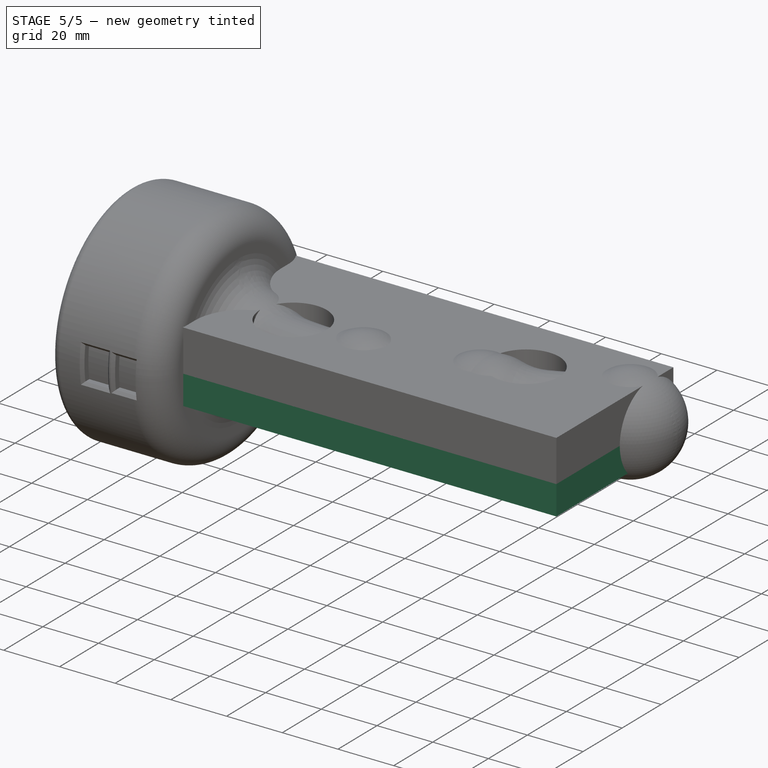
[diagram: stage 5 of 5 — iso view after this stage's code; geometry added in this stage tinted green]
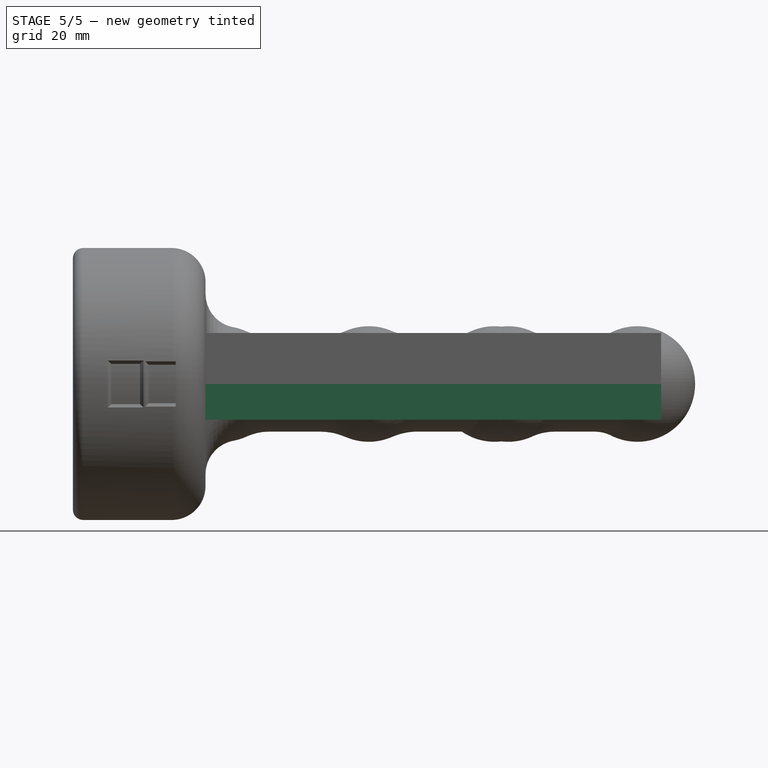
[diagram: stage 5 of 5 — front view after this stage's code; geometry added in this stage tinted green]
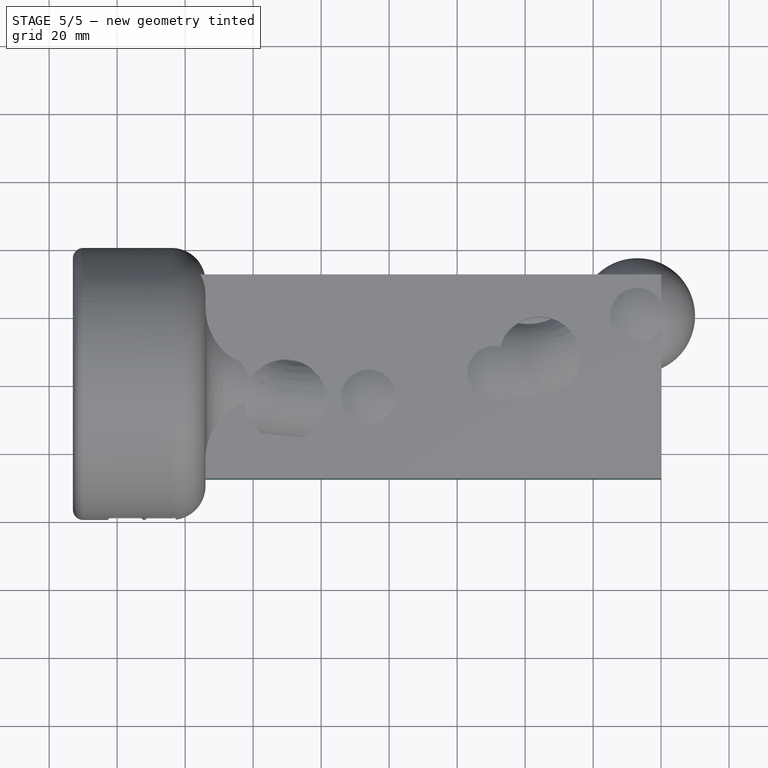
[diagram: stage 5 of 5 — top view after this stage's code; geometry added in this stage tinted green]
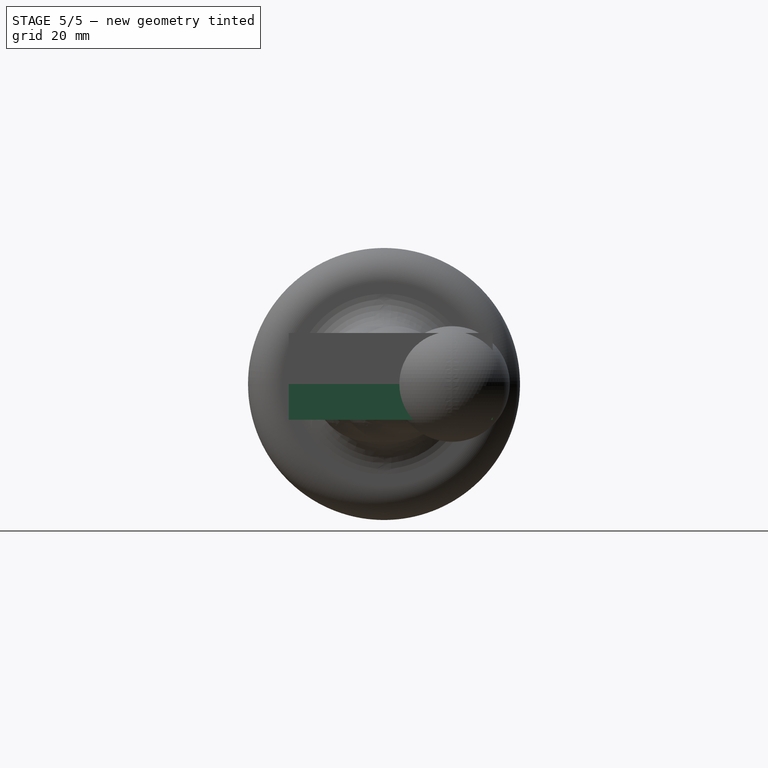
[diagram: stage 5 of 5 — right view after this stage's code; geometry added in this stage tinted green]
FEATURE [Sketcher::SketchObject] Sketch021  label="Base Size Test"
  Placement = pos=(0,0,0) rot=(0.57735,-0.57735,-0.57735;2.0944rad)
  sketch-geometry (1):
    g0: Circle CenterX=0 CenterY=0 CenterZ=0 NormalX=0 NormalY=0 NormalZ=1 Radius=29
  constraints (2):
    c: Coincident(g0,g-1)
    c: Radius(g0) = 29
FEATURE [Part::Extrusion] Extrude015  label="Base Size Test001"
  Base = -> Sketch021
  Dir = (-25,0,0)
  Solid = true
FEATURE [Part::Fillet] Fillet003
  Edges = 1 edges r=15: [Edge2]
FEATURE [Part::Fillet] Fillet004  label="RoughForm Test"
  Base = -> Fillet003
  Edges = 1 edges r=5: [Edge6]
FEATURE [Sketcher::SketchObject] Sketch030  label="Wire Diameter"
  Placement = pos=(0,0,0) rot=(0.57735,-0.57735,-0.57735;2.0944rad)
  sketch-geometry (1):
    g0: Circle CenterX=0 CenterY=0 CenterZ=0 NormalX=0 NormalY=0 NormalZ=1 Radius=3
  constraints (2):
    c: Coincident(g0,g-1)
    c: Radius(g0) = 3
FEATURE [Sketcher::SketchObject] Sketch031  label="Motor Diameter"
  Placement = pos=(0,0,0) rot=(0.57735,-0.57735,-0.57735;2.0944rad)
  sketch-geometry (1):
    g0: Circle CenterX=0 CenterY=0 CenterZ=0 NormalX=0 NormalY=0 NormalZ=1 Radius=5
  constraints (1):
    c: Radius(g0) = 5
FEATURE [Part::Sweep] Sweep001  label="WireTube"
  Frenet = false
  Sections = -> [Sketch030]
  Solid = true
  Spine = -> Sketch [Edge1]
  Transition = 1
FEATURE [Sketcher::SketchObject] Sketch033  label="Motor Diameter001"
  Placement = pos=(0,0,0) rot=(0.57735,-0.57735,-0.57735;2.0944rad)
  sketch-geometry (1):
    g0: Circle CenterX=0 CenterY=0 CenterZ=0 NormalX=0 NormalY=0 NormalZ=1 Radius=5
  constraints (2):
    c: Coincident(g0,g-1)
    c: Radius(g0) = 5
FEATURE [Sketcher::SketchObject] Sketch035  label="Motor Diameter002"
  Placement = pos=(0,0,0) rot=(0.57735,-0.57735,-0.57735;2.0944rad)
  sketch-geometry (1):
    g0: Circle CenterX=0 CenterY=0 CenterZ=0 NormalX=0 NormalY=0 NormalZ=1 Radius=5
  constraints (2):
    c: Coincident(g0,g-1)
    c: Radius(g0) = 5
FEATURE [Part::Sweep] Sweep006  label="Motor 1"
  Frenet = false
  Sections = -> [Sketch033]
  Solid = true
  Spine = -> Sketch [Edge1]
  Transition = 1
FEATURE [Part::Sweep] Sweep007  label="Motor 2"
  Frenet = false
  Sections = -> [Sketch035]
  Solid = true
  Spine = -> Sketch [Edge1]
  Transition = 1
FEATURE [Sketcher::SketchObject] Sketch037  label="Motor 0 Cut"
  Placement = pos=(0,0,-10) rot=(0,0,1;0rad)
  sketch-geometry (12):
    g0: ArcOfCircle [constr] CenterX=40.5404 CenterY=155.794 CenterZ=0 NormalX=0 NormalY=0 NormalZ=1 Radius=160.982 StartAngle=4.45782 EndAngle=5.27936
    g1: LineSegment StartX=-12.9827 StartY=13.9298 StartZ=0 EndX=10.0676 EndY=9.14019 EndZ=0
    g2: LineSegment StartX=10.0676 StartY=9.14019 StartZ=0 EndX=5.91182 EndY=-10.8598 EndZ=0
    g3: LineSegment StartX=5.91182 StartY=-10.8598 StartZ=0 EndX=-17.1385 EndY=-6.07023 EndZ=0
    g4: LineSegment StartX=-17.1385 StartY=-6.07023 StartZ=0 EndX=-12.9827 EndY=13.9298 EndZ=0
    g5: LineSegment StartX=35.2009 StartY=32.2366 StartZ=0 EndX=147.897 EndY=32.2366 EndZ=0
    g6: LineSegment StartX=147.897 StartY=32.2366 StartZ=0 EndX=145.69 EndY=-18.8314 EndZ=0
    g7: LineSegment StartX=145.69 StartY=-18.8314 StartZ=0 EndX=32.994 EndY=-18.8314 EndZ=0
    g8: LineSegment StartX=32.994 StartY=-18.8314 StartZ=0 EndX=35.2009 EndY=32.2366 EndZ=0
    g9: GeomPoint [constr] X=7.78984 Y=-1.82166 Z=0
    g10: GeomPoint [constr] X=33.5901 Y=-5.03818 Z=0
    g11: GeomPoint [constr] X=-14.9084 Y=4.66252 Z=0
  constraints (32):
    c: Coincident(g0,g-1)
    c: DistanceY(g-1,g0) = 20
    c: DistanceX(g-2,g0) = 127
    c: DistanceX(g0) = 40.5404
    c: Coincident(g1,g2)
    c: Coincident(g2,g3)
    c: Coincident(g3,g4)
    c: Coincident(g4,g1)
    c: Perpendicular(g2,g0)
    c: Parallel(g4,g2)
    c: DistanceY(g2) = -20
    c: Parallel(g3,g1)
    c: Perpendicular(g3,g2)
    c: Coincident(g5,g6)
    c: Coincident(g6,g7)
    c: Coincident(g7,g8)
    c: Coincident(g8,g5)
    c: Perpendicular(g8,g0)
    c: Parallel(g6,g8)
    c: Distance(g8) = 51.1157
    c: Distance(g5) = 112.696
    c: DistanceY(g-1,g5) = 32.2366
    c: Horizontal(g7)
    c: Horizontal(g5)
    c: PointOnObject(g9,g2)
    c: PointOnObject(g9,g0)
    c: PointOnObject(g10,g8)
    c: PointOnObject(g10,g0)
    c: Distance(g10,g9) = 26
    c: PointOnObject(g11,g4)
    c: PointOnObject(g11,g0)
    c: Distance(g-1,g9) = 8
FEATURE [Part::Sweep] Sweep008  label="Motor 0"
  Frenet = false
  Sections = -> [Sketch031]
  Solid = true
  Spine = -> Sketch [Edge1]
  Transition = 1
FEATURE [Sketcher::SketchObject] Sketch038  label="Motor 1 Cut"
  Placement = pos=(0,0,-10) rot=(0,0,1;0rad)
  sketch-geometry (11):
    g0: ArcOfCircle [constr] CenterX=40.5404 CenterY=155.794 CenterZ=0 NormalX=0 NormalY=0 NormalZ=1 Radius=160.982 StartAngle=4.45782 EndAngle=5.27936
    g1: LineSegment StartX=-30.8507 StartY=26.9284 StartZ=0 EndX=49.1493 EndY=26.9284 EndZ=0
    g2: LineSegment StartX=49.1493 StartY=26.9284 StartZ=0 EndX=52.4895 EndY=-23.0716 EndZ=0
    g3: LineSegment StartX=52.4895 StartY=-23.0716 StartZ=0 EndX=-27.5105 EndY=-23.0716 EndZ=0
    g4: LineSegment StartX=-27.5105 StartY=-23.0716 StartZ=0 EndX=-30.8507 EndY=26.9284 EndZ=0
    g5: LineSegment StartX=69.2608 StartY=32.2366 StartZ=0 EndX=159.261 EndY=32.2366 EndZ=0
    g6: LineSegment StartX=159.261 StartY=32.2366 StartZ=0 EndX=170.834 EndY=-17.5517 EndZ=0
    g7: LineSegment StartX=170.834 StartY=-17.5517 StartZ=0 EndX=80.834 EndY=-17.5517 EndZ=0
    g8: LineSegment StartX=80.834 StartY=-17.5517 StartZ=0 EndX=69.2608 EndY=32.2366 EndZ=0
    g9: GeomPoint [constr] X=51.2709 Y=-4.83026 Z=0
    g10: GeomPoint [constr] X=76.9884 Y=-1.0079 Z=0
  constraints (32):
    c: Coincident(g0,g-1)
    c: DistanceY(g-1,g0) = 20
    c: DistanceX(g-2,g0) = 127
    c: DistanceX(g0) = 40.5404
    c: Coincident(g1,g2)
    c: Coincident(g2,g3)
    c: Coincident(g3,g4)
    c: Coincident(g4,g1)
    c: Perpendicular(g2,g0)
    c: Parallel(g4,g2)
    c: DistanceY(g2) = -50
    c: Coincident(g5,g6)
    c: Coincident(g6,g7)
    c: Coincident(g7,g8)
    c: Coincident(g8,g5)
    c: Perpendicular(g8,g0)
    c: Parallel(g6,g8)
    c: Distance(g8) = 51.1157
    c: Distance(g5) = 90
    c: DistanceY(g-1,g5) = 32.2366
    c: Horizontal(g7)
    c: Horizontal(g5)
    c: Horizontal(g3)
    c: Horizontal(g1)
    c: PointOnObject(g9,g2)
    c: PointOnObject(g9,g0)
    c: PointOnObject(g10,g8)
    c: PointOnObject(g10,g0)
    c: Distance(g9,g10) = 26
    c: DistanceX(g1) = 80
    c: DistanceX(g1) = -30.8507
    c: DistanceY(g1) = 26.9284
FEATURE [Sketcher::SketchObject] Sketch039  label="Motor 2 Cut"
  Placement = pos=(0,0,-10) rot=(0,0,1;0rad)
  sketch-geometry (11):
    g0: ArcOfCircle [constr] CenterX=40.5404 CenterY=155.794 CenterZ=0 NormalX=0 NormalY=0 NormalZ=1 Radius=160.982 StartAngle=4.45782 EndAngle=5.27936
    g1: LineSegment StartX=-31.5401 StartY=26.9828 StartZ=0 EndX=88.4599 EndY=26.9828 EndZ=0
    g2: LineSegment StartX=88.4599 StartY=26.9828 StartZ=0 EndX=107.061 EndY=-23.0172 EndZ=0
    g3: LineSegment StartX=107.061 StartY=-23.0172 StartZ=0 EndX=-12.9394 EndY=-23.0172 EndZ=0
    g4: LineSegment StartX=-12.9394 StartY=-23.0172 StartZ=0 EndX=-31.5401 EndY=26.9828 EndZ=0
    g5: LineSegment StartX=113.661 StartY=27.4427 StartZ=0 EndX=203.661 EndY=27.4427 EndZ=0
    g6: LineSegment StartX=203.661 StartY=27.4427 StartZ=0 EndX=228.963 EndY=-16.9713 EndZ=0
    g7: LineSegment StartX=228.963 StartY=-16.9713 StartZ=0 EndX=138.963 EndY=-16.9713 EndZ=0
    g8: LineSegment StartX=138.963 StartY=-16.9713 StartZ=0 EndX=113.661 EndY=27.4427 EndZ=0
    g9: GeomPoint [constr] X=96.6698 Y=4.91399 Z=0
    g10: GeomPoint [constr] X=120.227 Y=15.9176 Z=0
  constraints (32):
    c: Coincident(g0,g-1)
    c: DistanceY(g-1,g0) = 20
    c: DistanceX(g-2,g0) = 127
    c: DistanceX(g0) = 40.5404
    c: Coincident(g1,g2)
    c: Coincident(g2,g3)
    c: Coincident(g3,g4)
    c: Coincident(g4,g1)
    c: Perpendicular(g2,g0)
    c: Parallel(g4,g2)
    c: DistanceY(g2) = -50
    c: Coincident(g5,g6)
    c: Coincident(g6,g7)
    c: Coincident(g7,g8)
    c: Coincident(g8,g5)
    c: Perpendicular(g8,g0)
    c: Parallel(g6,g8)
    c: Distance(g8) = 51.1157
    c: Distance(g5) = 90
    c: Horizontal(g7)
    c: Horizontal(g5)
    c: Horizontal(g3)
    c: Horizontal(g1)
    c: PointOnObject(g9,g2)
    c: PointOnObject(g9,g0)
    c: PointOnObject(g10,g8)
    c: PointOnObject(g10,g0)
    c: DistanceX(g1) = 120
    c: DistanceX(g1) = -31.5401
    c: DistanceY(g1) = 26.9828
    c: Distance(g9,g10) = 26
    c: DistanceY(g-1,g5) = 27.4427
FEATURE [Part::Extrusion] Extrude022
  Base = -> Sketch037
  Dir = (0,0,20)
  Solid = true
FEATURE [Part::Extrusion] Extrude023
  Base = -> Sketch038
  Dir = (0,0,20)
  Solid = true
FEATURE [Part::Extrusion] Extrude024
  Base = -> Sketch039
  Dir = (0,0,20)
  Solid = true
FEATURE [Part::Cut] Cut006  label="Motor zero"
  Base = -> Sweep008
  Placement = pos=(0,4,0) rot=(0,0,1;0rad)
  Tool = -> Extrude022
FEATURE [Part::Cut] Cut007  label="motor one"
  Base = -> Sweep006
  Placement = pos=(0,4,0) rot=(0,0,1;0rad)
  Tool = -> Extrude023
FEATURE [Part::Cut] Cut008  label="Motor two"
  Base = -> Sweep007
  Placement = pos=(0,4,0) rot=(0,0,1;0rad)
  Tool = -> Extrude024
FEATURE [Part::MultiFuse] Fusion008  label="Motor Tube Inner"
  Placement = pos=(3,-2,0) rot=(0,0,1;0rad)
  Shapes = -> [Sweep001,Cut008,Cut007,Cut006]
FEATURE [Part::Cut] Cut009  label="MotorTube Outer"
  Base = -> Sweep009
  Tool = -> Extrude025
FEATURE [Sketcher::SketchObject] Sketch042  label="Wire Diameter001"
  Placement = pos=(0,0,0) rot=(0.57735,-0.57735,-0.57735;2.0944rad)
  sketch-geometry (1):
    g0: Circle CenterX=0 CenterY=0 CenterZ=0 NormalX=0 NormalY=0 NormalZ=1 Radius=4
  constraints (2):
    c: Coincident(g0,g-1)
    c: Radius(g0) = 4
FEATURE [Part::Sweep] Sweep010
  Frenet = false
  Placement = pos=(0,-2,0) rot=(0,0,1;0rad)
  Sections = -> [Sketch042]
  Solid = true
  Spine = -> Sketch [Edge1]
  Transition = 1
FEATURE [Part::MultiFuse] Fusion009  label="Motor Tube Outer002"
  Placement = pos=(3,1,0) rot=(0,0,1;0rad)
  Shapes = -> [Cut009,Sweep010]
FEATURE [Part::Sweep] Sweep011
  Frenet = false
  Placement = pos=(0,-3,0) rot=(0,0,1;0rad)
  Sections = -> [Sketch042]
  Solid = true
  Spine = -> Sketch [Edge1]
  Transition = 1
FEATURE [Part::Cut] Cut010  label="MotorTube Outer001"
  Base = -> Sweep009
  Tool = -> Extrude025
FEATURE [Part::MultiFuse] Fusion010  label="Motor Tube Outer003"
  Shapes = -> [Cut010,Sweep011]
FEATURE [Part::Extrusion] Extrude027  label="MotorMoldBottom Plate"
  Base = -> Sketch044
  Dir = (150,0,0)
  Solid = true
FEATURE [Part::Cut] Cut013
  Base = -> Extrude027
  Tool = -> Fusion010
FEATURE [Part::MultiFuse] Fusion013  label="Motor Mold Bottom"
  Shapes = -> [Extrude029,Cut013]
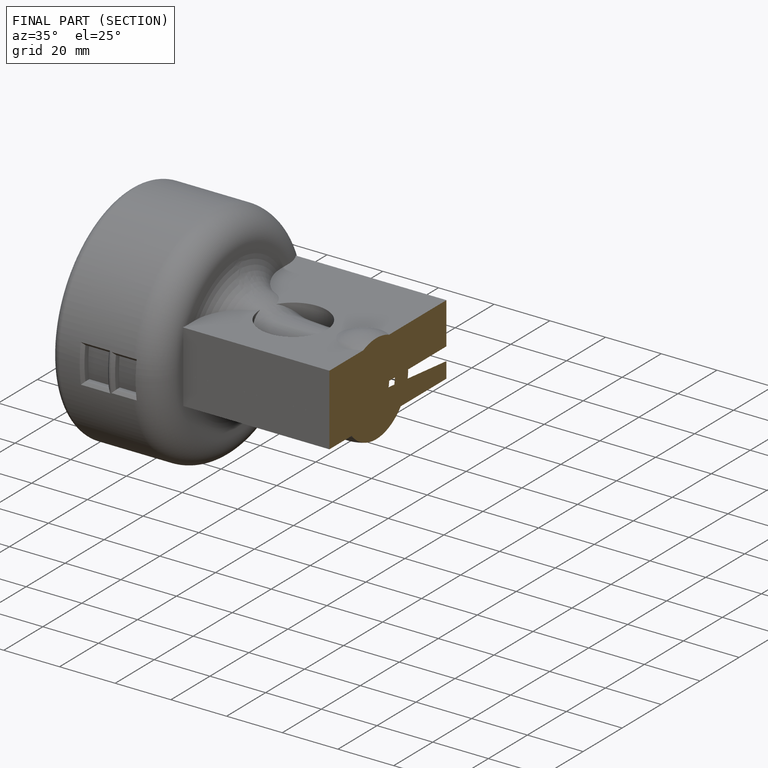
[diagram: finished part — half-section view (interior)]
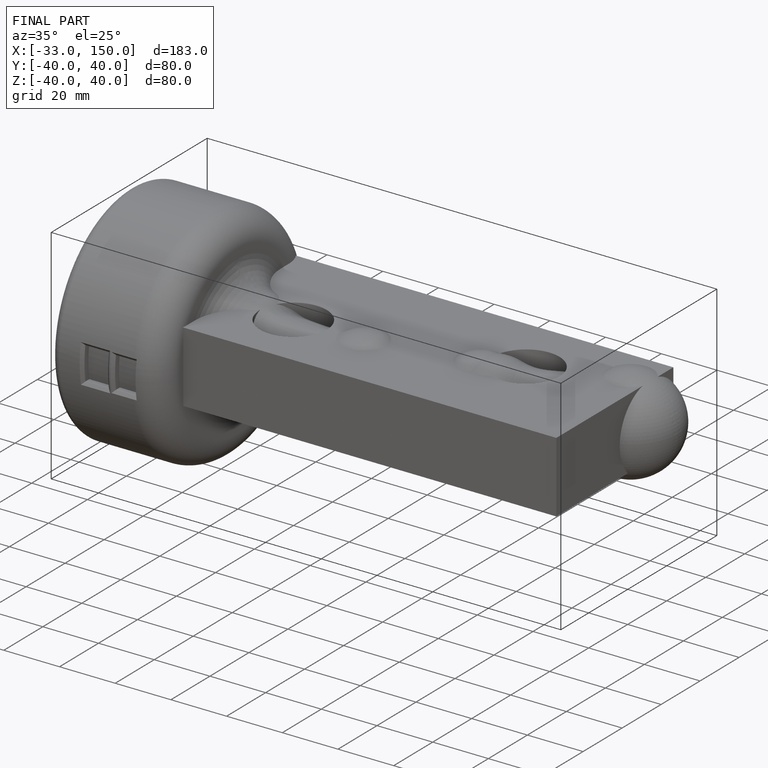
[diagram: finished part — iso view with bounding-box wireframe]
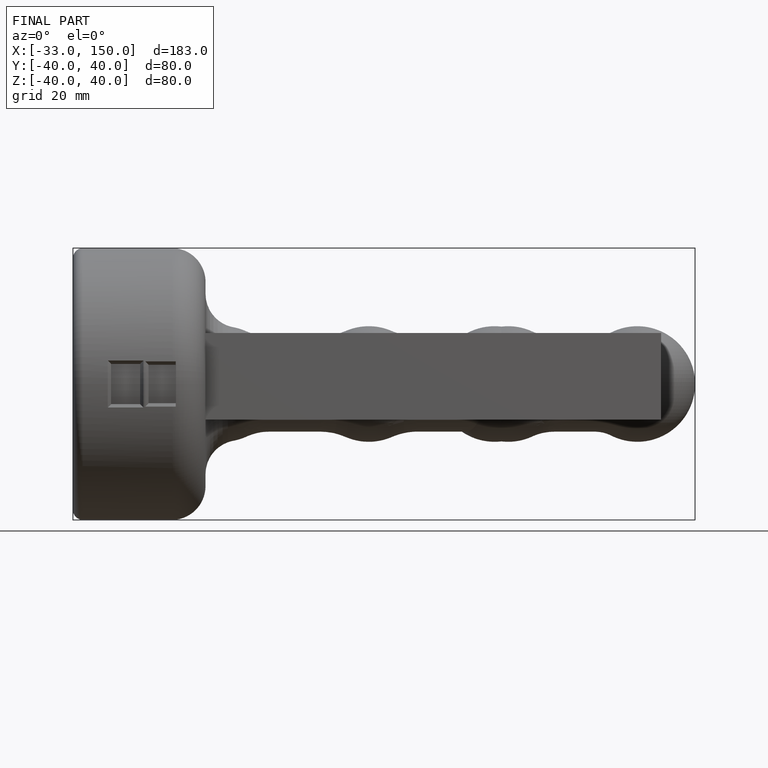
[diagram: finished part — front view with bounding-box wireframe]
